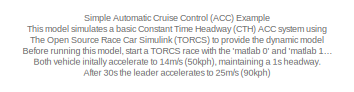
[diagram: root canvas - part 1/2, top left region]
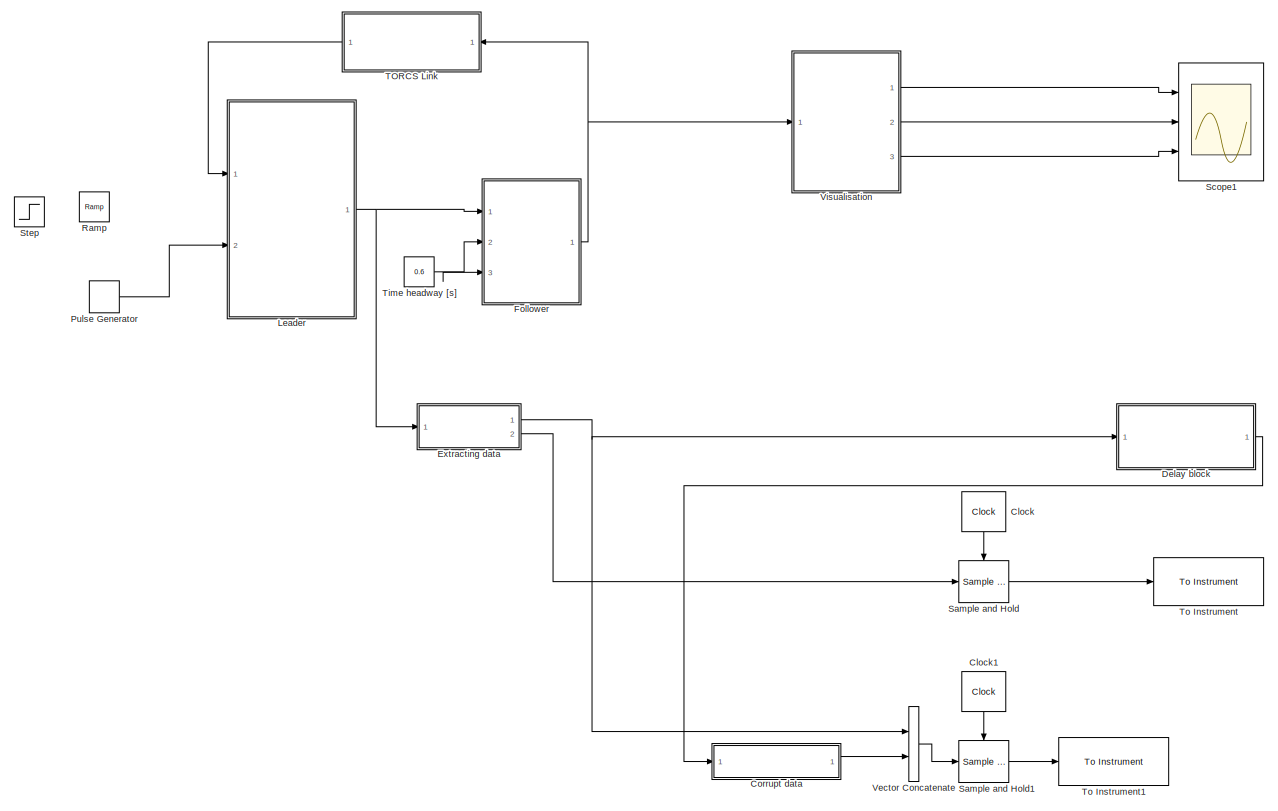
[diagram: root canvas - part 2/2, most of the canvas]
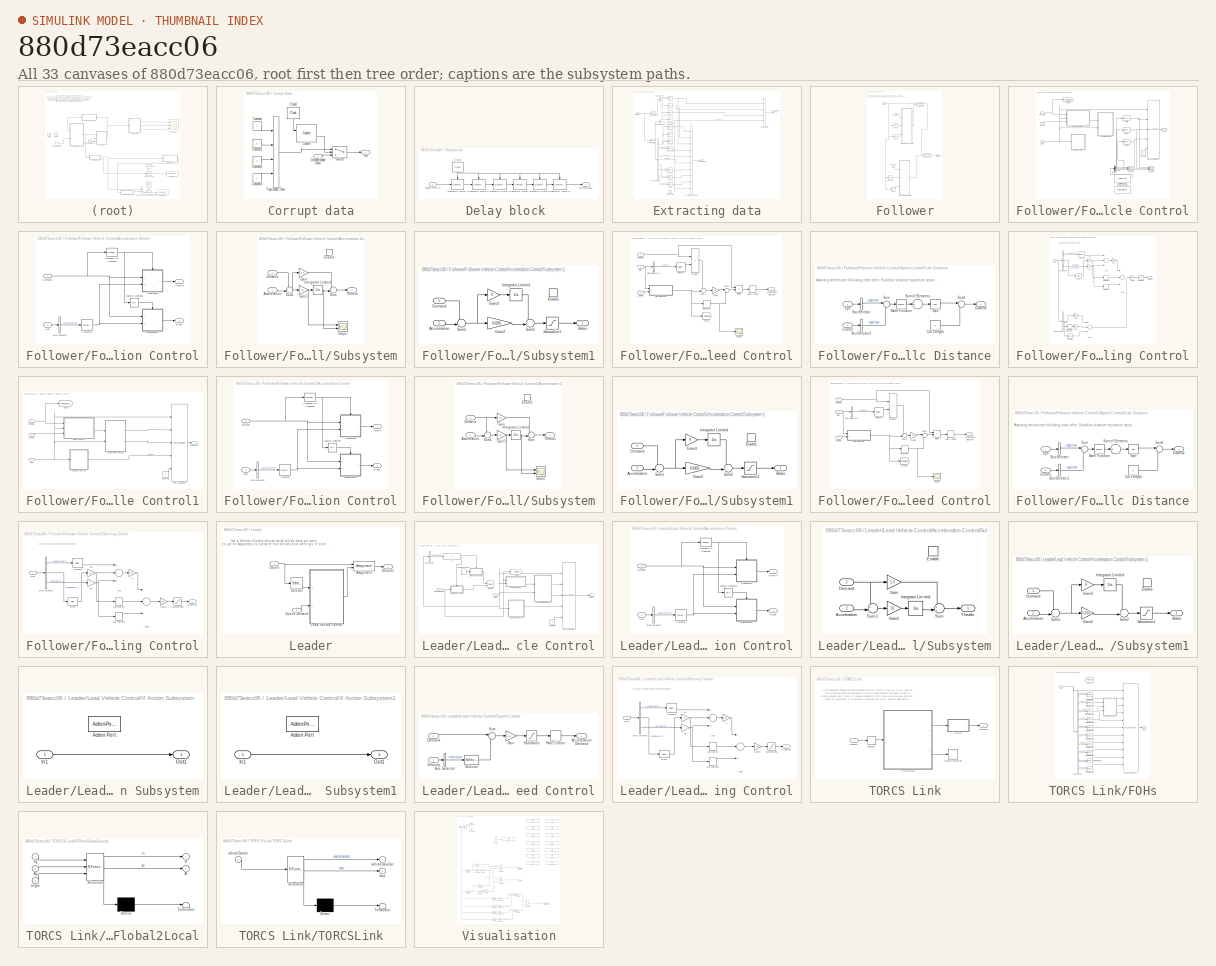
[diagram: thumbnail index - all 33 canvases of the model, root first then tree order]
MODEL slx_880d73eacc06
KIND model
CONFIG AbsTol = auto
CONFIG FixedStep = 0.02
CONFIG MaxStep = auto
CONFIG MinStep = auto
CONFIG RelTol = 1e-3
CONFIG SampleTimeConstraint = Unconstrained
CONFIG Solver = ode3
CONFIG SolverMode = Auto
CONFIG SolverName = ode3
CONFIG StartTime = 0.0
CONFIG StopTime = 1500
BLOCK [Reference] Clock  REF=simulink_extras/Flip Flops/Clock
  Ports = [0, 1]
  SourceBlock = simulink_extras/Flip Flops/Clock
  SourceType = Digital clock
  period = 0.04
BLOCK [Reference] Clock1  REF=simulink_extras/Flip Flops/Clock
  Ports = [0, 1]
  SourceBlock = simulink_extras/Flip Flops/Clock
  SourceType = Digital clock
  period = 0.04
BLOCK [SubSystem] Corrupt data
  Ports = [1, 1]
  RequestExecContextInheritance = off
BLOCK [Reference] Corrupt data/Clock2  REF=simulink_extras/Flip Flops/Clock
  Ports = [0, 1]
  SourceBlock = simulink_extras/Flip Flops/Clock
  SourceType = Digital clock
  period = 0.04
BLOCK [Constant] Corrupt data/Constant
  Value = 2
BLOCK [Constant] Corrupt data/Constant1
  Value = 2
BLOCK [Constant] Corrupt data/Constant2
  Value = 2
BLOCK [Constant] Corrupt data/Constant3
  Value = 2
BLOCK [Reference] Corrupt data/Counter  REF=dspswit3/Counter
  CntDtype = double
  CountEvent = Rising edge
  CounterSize = User defined
  Direction = Up
  HitDtype = Logical
  HitValue = 0
  InitialCount = 0
  MaxCount = 255
  Output = Count and Hit
  Ports = [2, 2]
  ResetInput = on
  SamplesPerFrame = 1
  SourceBlock = dspswit3/Counter
  SourceType = Counter
  Ts = 1
BLOCK [Inport] Corrupt data/Delayed Leader Data
  IconDisplay = Port number
BLOCK [Concatenate] Corrupt data/Faux Leader Data 
  NumInputs = 4
  Ports = [4, 1]
BLOCK [Outport] Corrupt data/Out
  IconDisplay = Port number
BLOCK [Switch] Corrupt data/Switch
  Criteria = u2 ~= 0
  InputSameDT = off
  SaturateOnIntegerOverflow = off
BLOCK [SubSystem] Delay block 
  Ports = [1, 1]
  RequestExecContextInheritance = off
BLOCK [Reference] Delay block /Clock1  REF=simulink_extras/Flip Flops/Clock
  Ports = [0, 1]
  SourceBlock = simulink_extras/Flip Flops/Clock
  SourceType = Digital clock
  period = 0.04
BLOCK [Outport] Delay block /Delayed data
  IconDisplay = Port number
BLOCK [Inport] Delay block /Leader Data in
  IconDisplay = Port number
BLOCK [Reference] Delay block /Sample & Delay 1  REF=dspsigops/Sample
and Hold
  Ports = [1, 1, 0, 1]
  SourceBlock = dspsigops/Sample\nand Hold
  SourceType = Sample and Hold
  initCond = 0
  latchinput = off
  trig = Rising edge
BLOCK [Reference] Delay block /Sample & Delay 2  REF=dspsigops/Sample
and Hold
  Ports = [1, 1, 0, 1]
  SourceBlock = dspsigops/Sample\nand Hold
  SourceType = Sample and Hold
  initCond = 0
  latchinput = on
  trig = Rising edge
BLOCK [Reference] Delay block /Sample & Delay 3  REF=dspsigops/Sample
and Hold
  Ports = [1, 1, 0, 1]
  SourceBlock = dspsigops/Sample\nand Hold
  SourceType = Sample and Hold
  initCond = 0
  latchinput = on
  trig = Rising edge
BLOCK [Reference] Delay block /Sample & Delay 4  REF=dspsigops/Sample
and Hold
  Ports = [1, 1, 0, 1]
  SourceBlock = dspsigops/Sample\nand Hold
  SourceType = Sample and Hold
  initCond = 0
  latchinput = on
  trig = Rising edge
BLOCK [Reference] Delay block /Sample & Delay 5  REF=dspsigops/Sample
and Hold
  Ports = [1, 1, 0, 1]
  SourceBlock = dspsigops/Sample\nand Hold
  SourceType = Sample and Hold
  initCond = 0
  latchinput = on
  trig = Rising edge
BLOCK [Reference] Delay block /Sample & Delay 6  REF=dspsigops/Sample
and Hold
  Ports = [1, 1, 0, 1]
  SourceBlock = dspsigops/Sample\nand Hold
  SourceType = Sample and Hold
  initCond = 0
  latchinput = on
  trig = Rising edge
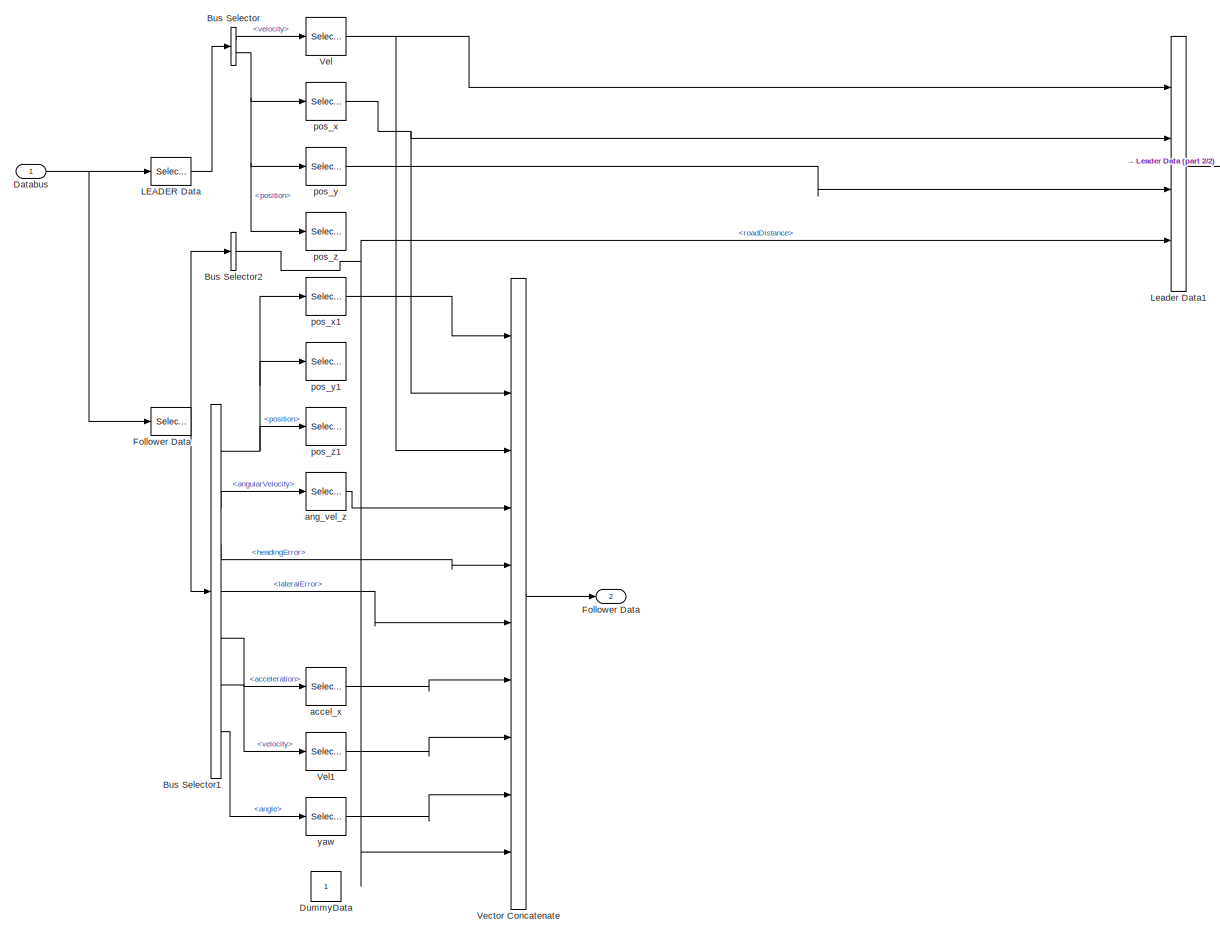
[diagram: Extracting data - part 1/2, most of the canvas]
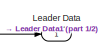
[diagram: Extracting data - part 2/2, top right region]
BLOCK [SubSystem] Extracting data
  Ports = [1, 2]
  RequestExecContextInheritance = off
BLOCK [BusSelector] Extracting data/Bus Selector
  OutputSignals = data.velocity,data.position
  Ports = [1, 2]
BLOCK [BusSelector] Extracting data/Bus Selector1
  OutputSignals = data.position,data.angularVelocity,data.headingError,data.lateralError,data.acceleration,data.velocity,data.angle
  Ports = [1, 7]
BLOCK [BusSelector] Extracting data/Bus Selector2
  OutputSignals = data.roadDistance
  Ports = [1, 1]
BLOCK [Inport] Extracting data/Databus
  IconDisplay = Port number
BLOCK [Constant] Extracting data/DummyData
BLOCK [Outport] Extracting data/Follower Data
  IconDisplay = Port number
  Port = 2
BLOCK [Selector] Extracting data/LEADER Data
  InputPortWidth = 10
  Ports = [1, 1]
BLOCK [Outport] Extracting data/Leader Data
  IconDisplay = Port number
BLOCK [Concatenate] Extracting data/Leader Data1
  NumInputs = 4
  Ports = [4, 1]
BLOCK [Concatenate] Extracting data/Vector Concatenate
  NumInputs = 10
  Ports = [10, 1]
BLOCK [Selector] Extracting data/Vel
  InputPortWidth = 3
  Ports = [1, 1]
BLOCK [Selector] Extracting data/Vel1
  InputPortWidth = 3
  Ports = [1, 1]
BLOCK [Selector] Extracting data/accel_x
  InputPortWidth = 3
  Ports = [1, 1]
BLOCK [Selector] Extracting data/ang_vel_z
  Indices = 3
  InputPortWidth = 3
  Ports = [1, 1]
BLOCK [Selector] Extracting data/pos_x
  InputPortWidth = 3
  Ports = [1, 1]
BLOCK [Selector] Extracting data/pos_x1
  InputPortWidth = 3
  Ports = [1, 1]
BLOCK [Selector] Extracting data/pos_y
  Indices = 2
  InputPortWidth = 3
  Ports = [1, 1]
BLOCK [Selector] Extracting data/pos_y1
  Indices = 2
  InputPortWidth = 3
  Ports = [1, 1]
BLOCK [Selector] Extracting data/pos_z
  Commented = on
  Indices = 3
  InputPortWidth = 3
  Ports = [1, 1]
BLOCK [Selector] Extracting data/pos_z1
  Indices = 3
  InputPortWidth = 3
  Ports = [1, 1]
BLOCK [Selector] Extracting data/yaw
  Indices = 3
  InputPortWidth = 3
  Ports = [1, 1]
BLOCK [SubSystem] Follower
  CopyFcn = veh = str2num(get_param(gcb, 'vehicle'));\nveh = veh + 1;\nset_param(gcb,'vehicle',num2str(veh));
  Ports = [3, 1]
  RequestExecContextInheritance = off
BLOCK [Assignment] Follower/Assignment
  DiagnosticForDimensions = Warning
  Indices = 2
  Ports = [2, 1]
BLOCK [Assignment] Follower/Assignment1
  DiagnosticForDimensions = Warning
  Indices = 3
  Ports = [2, 1]
BLOCK [Inport] Follower/DataIn
  IconDisplay = Port number
BLOCK [Outport] Follower/DataOut
  IconDisplay = Port number
BLOCK [Selector] Follower/Ego
  Indices = 2
  InputPortWidth = 10
  Ports = [1, 1]
BLOCK [Selector] Follower/Ego2
  Indices = 3
  InputPortWidth = 10
  Ports = [1, 1]
BLOCK [SubSystem] Follower/Follower Vehicle Control
  Ports = [3, 1]
  RequestExecContextInheritance = off
BLOCK [SubSystem] Follower/Follower Vehicle Control/Acceleration Control
  Ports = [2, 2]
  RequestExecContextInheritance = off
BLOCK [Outport] Follower/Follower Vehicle Control/Acceleration Control/Brake
  IconDisplay = Port number
  Port = 2
BLOCK [BusSelector] Follower/Follower Vehicle Control/Acceleration Control/Bus Selector
  OutputSignals = data.acceleration
  Ports = [1, 1]
BLOCK [Reference] Follower/Follower Vehicle Control/Acceleration Control/Compare To Constant  REF=simulink/Logic and Bit
Operations/Compare
To Constant
  OutDataTypeStr = boolean
  Ports = [1, 1]
  SourceBlock = simulink/Logic and Bit\nOperations/Compare\nTo Constant
  SourceType = Compare To Constant
  ZeroCross = on
  const = -0.1
  relop = >=
BLOCK [Inport] Follower/Follower Vehicle Control/Acceleration Control/Demand
  IconDisplay = Port number
BLOCK [Inport] Follower/Follower Vehicle Control/Acceleration Control/Ego
  IconDisplay = Port number
  Port = 2
BLOCK [Logic] Follower/Follower Vehicle Control/Acceleration Control/Logical Operator
  AllPortsSameDT = off
  Operator = NOT
  OutDataTypeStr = boolean
  Ports = [1, 1]
BLOCK [Selector] Follower/Follower Vehicle Control/Acceleration Control/Selector
  InputPortWidth = 3
  Ports = [1, 1]
BLOCK [SubSystem] Follower/Follower Vehicle Control/Acceleration Control/Subsystem
  Ports = [2, 1, 1]
  RequestExecContextInheritance = off
BLOCK [Inport] Follower/Follower Vehicle Control/Acceleration Control/Subsystem/Acceleration
  IconDisplay = Port number
  Port = 2
BLOCK [Inport] Follower/Follower Vehicle Control/Acceleration Control/Subsystem/Demand
  IconDisplay = Port number
BLOCK [EnablePort] Follower/Follower Vehicle Control/Acceleration Control/Subsystem/Enable
  Ports = []
  StatesWhenEnabling = reset
BLOCK [Gain] Follower/Follower Vehicle Control/Acceleration Control/Subsystem/Gain
  Gain = 1.5
  OutDataTypeStr = Inherit: Inherit via internal rule
  ParamDataTypeStr = Inherit: Inherit via internal rule
  SaturateOnIntegerOverflow = off
BLOCK [Gain] Follower/Follower Vehicle Control/Acceleration Control/Subsystem/Gain1
  Gain = 10
  OutDataTypeStr = Inherit: Inherit via internal rule
  ParamDataTypeStr = Inherit: Inherit via internal rule
  SaturateOnIntegerOverflow = off
BLOCK [Integrator] Follower/Follower Vehicle Control/Acceleration Control/Subsystem/Integrator Limited
  LimitOutput = on
  LowerSaturationLimit = -1
  Ports = [1, 1]
  UpperSaturationLimit = 1
BLOCK [Scope] Follower/Follower Vehicle Control/Acceleration Control/Subsystem/Scope
  DataFormat = StructureWithTime
  Floating = off
  LimitDataPoints = off
  NumInputPorts = 2
  Ports = [2]
  SaveName = ScopeData5
  ShowLegends = on
  YMax = 327.17922~5
  YMin = -36.35325~-5
BLOCK [Sum] Follower/Follower Vehicle Control/Acceleration Control/Subsystem/Sum
  IconShape = round
  InputSameDT = off
  Inputs = ++|
  OutDataTypeStr = Inherit: Inherit via internal rule
  Ports = [2, 1]
  SaturateOnIntegerOverflow = off
BLOCK [Sum] Follower/Follower Vehicle Control/Acceleration Control/Subsystem/Sum1
  IconShape = round
  InputSameDT = off
  Inputs = +-|
  OutDataTypeStr = Inherit: Inherit via internal rule
  Ports = [2, 1]
  SaturateOnIntegerOverflow = off
BLOCK [Outport] Follower/Follower Vehicle Control/Acceleration Control/Subsystem/Throttle
  IconDisplay = Port number
  InitialOutput = 0
  OutputWhenDisabled = reset
BLOCK [SubSystem] Follower/Follower Vehicle Control/Acceleration Control/Subsystem1
  Ports = [2, 1, 1]
  RequestExecContextInheritance = off
BLOCK [Inport] Follower/Follower Vehicle Control/Acceleration Control/Subsystem1/Acceleration
  IconDisplay = Port number
  Port = 2
BLOCK [Outport] Follower/Follower Vehicle Control/Acceleration Control/Subsystem1/Brake
  IconDisplay = Port number
  InitialOutput = 0
  OutputWhenDisabled = reset
BLOCK [Inport] Follower/Follower Vehicle Control/Acceleration Control/Subsystem1/Demand
  IconDisplay = Port number
BLOCK [EnablePort] Follower/Follower Vehicle Control/Acceleration Control/Subsystem1/Enable
  Ports = []
  StatesWhenEnabling = reset
BLOCK [Gain] Follower/Follower Vehicle Control/Acceleration Control/Subsystem1/Gain2
  Gain = 0.005
  OutDataTypeStr = Inherit: Inherit via internal rule
  ParamDataTypeStr = Inherit: Inherit via internal rule
  SaturateOnIntegerOverflow = off
BLOCK [Gain] Follower/Follower Vehicle Control/Acceleration Control/Subsystem1/Gain3
  OutDataTypeStr = Inherit: Inherit via internal rule
  ParamDataTypeStr = Inherit: Inherit via internal rule
  SaturateOnIntegerOverflow = off
BLOCK [Integrator] Follower/Follower Vehicle Control/Acceleration Control/Subsystem1/Integrator Limited
  LimitOutput = on
  LowerSaturationLimit = -1
  Ports = [1, 1]
  UpperSaturationLimit = 1
BLOCK [Saturate] Follower/Follower Vehicle Control/Acceleration Control/Subsystem1/Saturation1
  InputPortMap = u0
  LowerLimit = 0
  Ports = [1, 1]
  UpperLimit = 1
BLOCK [Sum] Follower/Follower Vehicle Control/Acceleration Control/Subsystem1/Sum1
  IconShape = round
  InputSameDT = off
  Inputs = -+|
  OutDataTypeStr = Inherit: Inherit via internal rule
  Ports = [2, 1]
  SaturateOnIntegerOverflow = off
BLOCK [Sum] Follower/Follower Vehicle Control/Acceleration Control/Subsystem1/Sum2
  IconShape = round
  InputSameDT = off
  Inputs = ++|
  OutDataTypeStr = Inherit: Inherit via internal rule
  Ports = [2, 1]
  SaturateOnIntegerOverflow = off
BLOCK [Outport] Follower/Follower Vehicle Control/Acceleration Control/Throttle
  IconDisplay = Port number
BLOCK [DataTypeConversion] Follower/Follower Vehicle Control/Brake
  OutDataTypeStr = double
  RndMeth = Floor
  SaturateOnIntegerOverflow = off
BLOCK [BusAssignment] Follower/Follower Vehicle Control/Bus Assignment
  AssignedSignals = control.throttle,control.brake,control.steering,control.gear
  Ports = [5, 1]
BLOCK [Constant] Follower/Follower Vehicle Control/Constant
  OutDataTypeStr = int32
  Value = 3
BLOCK [Demux] Follower/Follower Vehicle Control/Demux
  DisplayOption = bar
  Outputs = 3
  Ports = [1, 3]
BLOCK [Outport] Follower/Follower Vehicle Control/ECU 1
  IconDisplay = Port number
BLOCK [Inport] Follower/Follower Vehicle Control/Ego
  IconDisplay = Port number
  Port = 3
BLOCK [Goto] Follower/Follower Vehicle Control/Goto
  GotoTag = headway
  TagVisibility = global
BLOCK [Inport] Follower/Follower Vehicle Control/Headway
  IconDisplay = Port number
BLOCK [Inport] Follower/Follower Vehicle Control/Leader
  IconDisplay = Port number
  Port = 2
BLOCK [Scope] Follower/Follower Vehicle Control/Scope1
  DataFormat = StructureWithTime
  Floating = off
  LimitDataPoints = off
  NumInputPorts = 3
  Ports = [3]
  SaveName = ScopeData1
  ShowLegends = on
  YMax = 0.6~5~5
  YMin = -0.6~-5~-5
BLOCK [Scope] Follower/Follower Vehicle Control/Scope3
  DataFormat = StructureWithTime
  Floating = off
  LimitDataPoints = off
  NumInputPorts = 3
  Ports = [3]
  SaveName = ScopeData1
  YMax = 29.37274~5~5
  YMin = -3.81919~-5~-5
BLOCK [Reference] Follower/Follower Vehicle Control/Serial Configuration  REF=instrumentlib/Serial Configuration
  BaudRate = 115200
  ByteOrder = BigEndian
  ComPort = COM2
  ComPortMenu = <Please select a port...>
  DataBits = 8
  FlowControl = none
  ObjConstructor = serial('COM2');
  Parity = none
  Ports = []
  Priority = -200000
  SourceBlock = instrumentlib/Serial Configuration
  SourceType = Serial Configuration
  StopBits = 1
  Timeout = 10
BLOCK [Reference] Follower/Follower Vehicle Control/Serial Receive  REF=instrumentlib/Serial Receive
  ActionDataUnavailable = Output last received value
  ComPort = COM2
  ComPortMenu = <Please select a port...>
  CustomValue = 0
  DataSize = [1  3]
  DataType = single
  EnableBlockingMode = off
  ObjConstructor = serial('COM2');
  Ports = [0, 2]
  SampleTime = 0.02
  SourceBlock = instrumentlib/Serial Receive
  SourceType = Serial Receive
  Terminator = <none>
BLOCK [SubSystem] Follower/Follower Vehicle Control/Speed Control
  Ports = [3, 1]
  RequestExecContextInheritance = off
BLOCK [Outport] Follower/Follower Vehicle Control/Speed Control/Acceleration Demand
  IconDisplay = Port number
BLOCK [BusSelector] Follower/Follower Vehicle Control/Speed Control/Bus Selector3
  OutputSignals = data.velocity
  Ports = [1, 1]
BLOCK [SubSystem] Follower/Follower Vehicle Control/Speed Control/Calc Distance
  Ports = [2, 1]
  RequestExecContextInheritance = off
BLOCK [BusSelector] Follower/Follower Vehicle Control/Speed Control/Calc Distance/Bus Selector
  OutputSignals = data.position
  Ports = [1, 1]
BLOCK [BusSelector] Follower/Follower Vehicle Control/Speed Control/Calc Distance/Bus Selector1
  OutputSignals = data.position
  Ports = [1, 1]
BLOCK [Constant] Follower/Follower Vehicle Control/Speed Control/Calc Distance/Car Length
  Value = 5
BLOCK [Outport] Follower/Follower Vehicle Control/Speed Control/Calc Distance/Distance
  IconDisplay = Port number
BLOCK [Inport] Follower/Follower Vehicle Control/Speed Control/Calc Distance/Ego
  IconDisplay = Port number
BLOCK [Inport] Follower/Follower Vehicle Control/Speed Control/Calc Distance/Leader
  IconDisplay = Port number
  Port = 2
BLOCK [Math] Follower/Follower Vehicle Control/Speed Control/Calc Distance/Math Function
  Operator = square
  Ports = [1, 1]
BLOCK [Sqrt] Follower/Follower Vehicle Control/Speed Control/Calc Distance/Sqrt
BLOCK [Sum] Follower/Follower Vehicle Control/Speed Control/Calc Distance/Sum
  IconShape = round
  InputSameDT = off
  Inputs = |+-
  OutDataTypeStr = Inherit: Inherit via internal rule
  Ports = [2, 1]
  SaturateOnIntegerOverflow = off
BLOCK [Sum] Follower/Follower Vehicle Control/Speed Control/Calc Distance/Sum of Elements
  InputSameDT = off
  Inputs = +
  OutDataTypeStr = Inherit: Inherit via internal rule
  Ports = [1, 1]
  SaturateOnIntegerOverflow = off
BLOCK [Sum] Follower/Follower Vehicle Control/Speed Control/Calc Distance/Sum1
  IconShape = round
  InputSameDT = off
  Inputs = |-+
  OutDataTypeStr = Inherit: Inherit via internal rule
  Ports = [2, 1]
  SaturateOnIntegerOverflow = off
BLOCK [Derivative] Follower/Follower Vehicle Control/Speed Control/Derivative
BLOCK [Product] Follower/Follower Vehicle Control/Speed Control/Divide
  InputSameDT = off
  Inputs = /*
  OutDataTypeStr = Inherit: Inherit via internal rule
  Ports = [2, 1]
  RndMeth = Floor
  SaturateOnIntegerOverflow = off
BLOCK [Inport] Follower/Follower Vehicle Control/Speed Control/Ego
  IconDisplay = Port number
  Port = 2
BLOCK [Gain] Follower/Follower Vehicle Control/Speed Control/Gain2
  Gain = 0.1
  OutDataTypeStr = Inherit: Inherit via internal rule
  ParamDataTypeStr = Inherit: Inherit via internal rule
  SaturateOnIntegerOverflow = off
BLOCK [Goto] Follower/Follower Vehicle Control/Speed Control/Goto
  GotoTag = spacing
  TagVisibility = global
BLOCK [Inport] Follower/Follower Vehicle Control/Speed Control/Headway
  IconDisplay = Port number
BLOCK [Inport] Follower/Follower Vehicle Control/Speed Control/Leader
  IconDisplay = Port number
  Port = 3
BLOCK [Product] Follower/Follower Vehicle Control/Speed Control/Product
  InputSameDT = off
  OutDataTypeStr = Inherit: Inherit via internal rule
  Ports = [2, 1]
  RndMeth = Floor
  SaturateOnIntegerOverflow = off
BLOCK [Scope] Follower/Follower Vehicle Control/Speed Control/Scope
  DataFormat = StructureWithTime
  Floating = off
  LimitDataPoints = off
  NumInputPorts = 1
  Ports = [1]
  SaveName = ScopeData1
  YMax = 58.13725
  YMin = -52.83291
BLOCK [Selector] Follower/Follower Vehicle Control/Speed Control/Selector
  InputPortWidth = 3
  Ports = [1, 1]
BLOCK [Sum] Follower/Follower Vehicle Control/Speed Control/Sum1
  IconShape = round
  InputSameDT = off
  Inputs = |++
  OutDataTypeStr = Inherit: Inherit via internal rule
  Ports = [2, 1]
  SaturateOnIntegerOverflow = off
BLOCK [Sum] Follower/Follower Vehicle Control/Speed Control/Sum2
  IconShape = round
  InputSameDT = off
  Inputs = -+|
  OutDataTypeStr = Inherit: Inherit via internal rule
  Ports = [2, 1]
  SaturateOnIntegerOverflow = off
BLOCK [UnaryMinus] Follower/Follower Vehicle Control/Speed Control/Unary Minus
BLOCK [DataTypeConversion] Follower/Follower Vehicle Control/Steering
  OutDataTypeStr = double
  RndMeth = Floor
  SaturateOnIntegerOverflow = off
BLOCK [SubSystem] Follower/Follower Vehicle Control/Steering Control
  Ports = [1, 1]
  RequestExecContextInheritance = off
BLOCK [Sum] Follower/Follower Vehicle Control/Steering Control/Add
  Commented = on
  InputSameDT = off
  Inputs = +++
  OutDataTypeStr = Inherit: Inherit via internal rule
  Ports = [3, 1]
  SaturateOnIntegerOverflow = off
BLOCK [Sum] Follower/Follower Vehicle Control/Steering Control/Add1
  Commented = on
  InputSameDT = off
  Inputs = ---
  OutDataTypeStr = Inherit: Inherit via internal rule
  Ports = [3, 1]
  SaturateOnIntegerOverflow = off
BLOCK [Sum] Follower/Follower Vehicle Control/Steering Control/Add2
  InputSameDT = off
  Inputs = +++
  OutDataTypeStr = Inherit: Inherit via internal rule
  Ports = [3, 1]
  SaturateOnIntegerOverflow = off
BLOCK [Bias] Follower/Follower Vehicle Control/Steering Control/Bias
  Commented = on
  SaturateOnIntegerOverflow = off
BLOCK [BusSelector] Follower/Follower Vehicle Control/Steering Control/Bus Selector
  Commented = on
  OutputSignals = data.angularVelocity,data.headingError,data.lateralError
  Ports = [1, 3]
BLOCK [BusSelector] Follower/Follower Vehicle Control/Steering Control/Bus Selector1
  OutputSignals = data.lateralError
  Ports = [1, 1]
BLOCK [Derivative] Follower/Follower Vehicle Control/Steering Control/Derivative
  Commented = on
BLOCK [Derivative] Follower/Follower Vehicle Control/Steering Control/Derivative1
  Commented = on
BLOCK [Derivative] Follower/Follower Vehicle Control/Steering Control/Derivative2
BLOCK [Inport] Follower/Follower Vehicle Control/Steering Control/Ego
  IconDisplay = Port number
BLOCK [Gain] Follower/Follower Vehicle Control/Steering Control/Gain3
  Gain = -0.5
  OutDataTypeStr = Inherit: Inherit via internal rule
  ParamDataTypeStr = Inherit: Inherit via internal rule
  SaturateOnIntegerOverflow = off
BLOCK [Integrator] Follower/Follower Vehicle Control/Steering Control/Integrator
  Ports = [1, 1]
BLOCK [Gain] Follower/Follower Vehicle Control/Steering Control/K
  Commented = on
  Gain = 0.5
  OutDataTypeStr = Inherit: Inherit via internal rule
  ParamDataTypeStr = Inherit: Inherit via internal rule
  SaturateOnIntegerOverflow = off
BLOCK [Saturate] Follower/Follower Vehicle Control/Steering Control/Saturation5
  InputPortMap = u0
  Ports = [1, 1]
BLOCK [Selector] Follower/Follower Vehicle Control/Steering Control/Selector
  Commented = on
  Indices = 3
  InputPortWidth = 3
  Ports = [1, 1]
BLOCK [Outport] Follower/Follower Vehicle Control/Steering Control/Steering
  IconDisplay = Port number
BLOCK [Gain] Follower/Follower Vehicle Control/Steering Control/kd
  Commented = on
  OutDataTypeStr = Inherit: Inherit via internal rule
  ParamDataTypeStr = Inherit: Inherit via internal rule
  SaturateOnIntegerOverflow = off
BLOCK [Gain] Follower/Follower Vehicle Control/Steering Control/kd1
  OutDataTypeStr = Inherit: Inherit via internal rule
  ParamDataTypeStr = Inherit: Inherit via internal rule
  SaturateOnIntegerOverflow = off
BLOCK [Gain] Follower/Follower Vehicle Control/Steering Control/kp
  Commented = on
  Gain = 0.1
  OutDataTypeStr = Inherit: Inherit via internal rule
  ParamDataTypeStr = Inherit: Inherit via internal rule
  SaturateOnIntegerOverflow = off
BLOCK [Gain] Follower/Follower Vehicle Control/Steering Control/kp1
  Gain = 5
  OutDataTypeStr = Inherit: Inherit via internal rule
  ParamDataTypeStr = Inherit: Inherit via internal rule
  SaturateOnIntegerOverflow = off
BLOCK [DataTypeConversion] Follower/Follower Vehicle Control/Throttle
  OutDataTypeStr = double
  RndMeth = Floor
  SaturateOnIntegerOverflow = off
BLOCK [SubSystem] Follower/Follower Vehicle Control1
  Ports = [3, 1]
  RequestExecContextInheritance = off
BLOCK [SubSystem] Follower/Follower Vehicle Control1/Acceleration Control
  Ports = [2, 2]
  RequestExecContextInheritance = off
BLOCK [Outport] Follower/Follower Vehicle Control1/Acceleration Control/Brake
  IconDisplay = Port number
  Port = 2
BLOCK [BusSelector] Follower/Follower Vehicle Control1/Acceleration Control/Bus Selector
  OutputSignals = data.acceleration
  Ports = [1, 1]
BLOCK [Reference] Follower/Follower Vehicle Control1/Acceleration Control/Compare To Constant  REF=simulink/Logic and Bit
Operations/Compare
To Constant
  OutDataTypeStr = boolean
  Ports = [1, 1]
  SourceBlock = simulink/Logic and Bit\nOperations/Compare\nTo Constant
  SourceType = Compare To Constant
  ZeroCross = on
  const = -0.1
  relop = >=
BLOCK [Inport] Follower/Follower Vehicle Control1/Acceleration Control/Demand
  IconDisplay = Port number
BLOCK [Inport] Follower/Follower Vehicle Control1/Acceleration Control/Ego
  IconDisplay = Port number
  Port = 2
BLOCK [Logic] Follower/Follower Vehicle Control1/Acceleration Control/Logical Operator
  AllPortsSameDT = off
  Operator = NOT
  OutDataTypeStr = boolean
  Ports = [1, 1]
BLOCK [Selector] Follower/Follower Vehicle Control1/Acceleration Control/Selector
  InputPortWidth = 3
  Ports = [1, 1]
BLOCK [SubSystem] Follower/Follower Vehicle Control1/Acceleration Control/Subsystem
  Ports = [2, 1, 1]
  RequestExecContextInheritance = off
BLOCK [Inport] Follower/Follower Vehicle Control1/Acceleration Control/Subsystem/Acceleration
  IconDisplay = Port number
  Port = 2
BLOCK [Inport] Follower/Follower Vehicle Control1/Acceleration Control/Subsystem/Demand
  IconDisplay = Port number
BLOCK [EnablePort] Follower/Follower Vehicle Control1/Acceleration Control/Subsystem/Enable
  Ports = []
  StatesWhenEnabling = reset
BLOCK [Gain] Follower/Follower Vehicle Control1/Acceleration Control/Subsystem/Gain
  Gain = 1.5
  OutDataTypeStr = Inherit: Inherit via internal rule
  ParamDataTypeStr = Inherit: Inherit via internal rule
  SaturateOnIntegerOverflow = off
BLOCK [Gain] Follower/Follower Vehicle Control1/Acceleration Control/Subsystem/Gain1
  Gain = 10
  OutDataTypeStr = Inherit: Inherit via internal rule
  ParamDataTypeStr = Inherit: Inherit via internal rule
  SaturateOnIntegerOverflow = off
BLOCK [Integrator] Follower/Follower Vehicle Control1/Acceleration Control/Subsystem/Integrator Limited
  LimitOutput = on
  LowerSaturationLimit = -1
  Ports = [1, 1]
  UpperSaturationLimit = 1
BLOCK [Scope] Follower/Follower Vehicle Control1/Acceleration Control/Subsystem/Scope
  DataFormat = StructureWithTime
  Floating = off
  LimitDataPoints = off
  NumInputPorts = 2
  Ports = [2]
  SaveName = ScopeData5
  ShowLegends = on
  YMax = 327.17922~5
  YMin = -36.35325~-5
BLOCK [Sum] Follower/Follower Vehicle Control1/Acceleration Control/Subsystem/Sum
  IconShape = round
  InputSameDT = off
  Inputs = ++|
  OutDataTypeStr = Inherit: Inherit via internal rule
  Ports = [2, 1]
  SaturateOnIntegerOverflow = off
BLOCK [Sum] Follower/Follower Vehicle Control1/Acceleration Control/Subsystem/Sum1
  IconShape = round
  InputSameDT = off
  Inputs = +-|
  OutDataTypeStr = Inherit: Inherit via internal rule
  Ports = [2, 1]
  SaturateOnIntegerOverflow = off
BLOCK [Outport] Follower/Follower Vehicle Control1/Acceleration Control/Subsystem/Throttle
  IconDisplay = Port number
  InitialOutput = 0
  OutputWhenDisabled = reset
BLOCK [SubSystem] Follower/Follower Vehicle Control1/Acceleration Control/Subsystem1
  Ports = [2, 1, 1]
  RequestExecContextInheritance = off
BLOCK [Inport] Follower/Follower Vehicle Control1/Acceleration Control/Subsystem1/Acceleration
  IconDisplay = Port number
  Port = 2
BLOCK [Outport] Follower/Follower Vehicle Control1/Acceleration Control/Subsystem1/Brake
  IconDisplay = Port number
  InitialOutput = 0
  OutputWhenDisabled = reset
BLOCK [Inport] Follower/Follower Vehicle Control1/Acceleration Control/Subsystem1/Demand
  IconDisplay = Port number
BLOCK [EnablePort] Follower/Follower Vehicle Control1/Acceleration Control/Subsystem1/Enable
  Ports = []
  StatesWhenEnabling = reset
BLOCK [Gain] Follower/Follower Vehicle Control1/Acceleration Control/Subsystem1/Gain2
  Gain = 0.005
  OutDataTypeStr = Inherit: Inherit via internal rule
  ParamDataTypeStr = Inherit: Inherit via internal rule
  SaturateOnIntegerOverflow = off
BLOCK [Gain] Follower/Follower Vehicle Control1/Acceleration Control/Subsystem1/Gain3
  OutDataTypeStr = Inherit: Inherit via internal rule
  ParamDataTypeStr = Inherit: Inherit via internal rule
  SaturateOnIntegerOverflow = off
BLOCK [Integrator] Follower/Follower Vehicle Control1/Acceleration Control/Subsystem1/Integrator Limited
  LimitOutput = on
  LowerSaturationLimit = -1
  Ports = [1, 1]
  UpperSaturationLimit = 1
BLOCK [Saturate] Follower/Follower Vehicle Control1/Acceleration Control/Subsystem1/Saturation1
  InputPortMap = u0
  LowerLimit = 0
  Ports = [1, 1]
  UpperLimit = 1
BLOCK [Sum] Follower/Follower Vehicle Control1/Acceleration Control/Subsystem1/Sum1
  IconShape = round
  InputSameDT = off
  Inputs = -+|
  OutDataTypeStr = Inherit: Inherit via internal rule
  Ports = [2, 1]
  SaturateOnIntegerOverflow = off
BLOCK [Sum] Follower/Follower Vehicle Control1/Acceleration Control/Subsystem1/Sum2
  IconShape = round
  InputSameDT = off
  Inputs = ++|
  OutDataTypeStr = Inherit: Inherit via internal rule
  Ports = [2, 1]
  SaturateOnIntegerOverflow = off
BLOCK [Outport] Follower/Follower Vehicle Control1/Acceleration Control/Throttle
  IconDisplay = Port number
BLOCK [BusAssignment] Follower/Follower Vehicle Control1/Bus Assignment
  AssignedSignals = control.throttle,control.brake,control.steering,control.gear
  Ports = [5, 1]
BLOCK [Constant] Follower/Follower Vehicle Control1/Constant
  OutDataTypeStr = int32
  Value = 3
BLOCK [Outport] Follower/Follower Vehicle Control1/Data Out
  IconDisplay = Port number
BLOCK [Inport] Follower/Follower Vehicle Control1/Ego
  IconDisplay = Port number
  Port = 3
BLOCK [Goto] Follower/Follower Vehicle Control1/Goto1
  GotoTag = headway1
  TagVisibility = global
BLOCK [Inport] Follower/Follower Vehicle Control1/Headway
  IconDisplay = Port number
BLOCK [Inport] Follower/Follower Vehicle Control1/Leader
  IconDisplay = Port number
  Port = 2
BLOCK [SubSystem] Follower/Follower Vehicle Control1/Speed Control
  Ports = [3, 1]
  RequestExecContextInheritance = off
BLOCK [Outport] Follower/Follower Vehicle Control1/Speed Control/Acceleration Demand
  IconDisplay = Port number
BLOCK [BusSelector] Follower/Follower Vehicle Control1/Speed Control/Bus Selector3
  OutputSignals = data.velocity
  Ports = [1, 1]
BLOCK [SubSystem] Follower/Follower Vehicle Control1/Speed Control/Calc Distance
  Ports = [2, 1]
  RequestExecContextInheritance = off
BLOCK [BusSelector] Follower/Follower Vehicle Control1/Speed Control/Calc Distance/Bus Selector
  OutputSignals = data.position
  Ports = [1, 1]
BLOCK [BusSelector] Follower/Follower Vehicle Control1/Speed Control/Calc Distance/Bus Selector1
  OutputSignals = data.position
  Ports = [1, 1]
BLOCK [Constant] Follower/Follower Vehicle Control1/Speed Control/Calc Distance/Car Length
  Value = 5
BLOCK [Outport] Follower/Follower Vehicle Control1/Speed Control/Calc Distance/Distance
  IconDisplay = Port number
BLOCK [Inport] Follower/Follower Vehicle Control1/Speed Control/Calc Distance/Ego
  IconDisplay = Port number
BLOCK [Inport] Follower/Follower Vehicle Control1/Speed Control/Calc Distance/Leader
  IconDisplay = Port number
  Port = 2
BLOCK [Math] Follower/Follower Vehicle Control1/Speed Control/Calc Distance/Math Function
  Operator = square
  Ports = [1, 1]
BLOCK [Sqrt] Follower/Follower Vehicle Control1/Speed Control/Calc Distance/Sqrt
BLOCK [Sum] Follower/Follower Vehicle Control1/Speed Control/Calc Distance/Sum
  IconShape = round
  InputSameDT = off
  Inputs = |+-
  OutDataTypeStr = Inherit: Inherit via internal rule
  Ports = [2, 1]
  SaturateOnIntegerOverflow = off
BLOCK [Sum] Follower/Follower Vehicle Control1/Speed Control/Calc Distance/Sum of Elements
  InputSameDT = off
  Inputs = +
  OutDataTypeStr = Inherit: Inherit via internal rule
  Ports = [1, 1]
  SaturateOnIntegerOverflow = off
BLOCK [Sum] Follower/Follower Vehicle Control1/Speed Control/Calc Distance/Sum1
  IconShape = round
  InputSameDT = off
  Inputs = |-+
  OutDataTypeStr = Inherit: Inherit via internal rule
  Ports = [2, 1]
  SaturateOnIntegerOverflow = off
BLOCK [Derivative] Follower/Follower Vehicle Control1/Speed Control/Derivative
BLOCK [Product] Follower/Follower Vehicle Control1/Speed Control/Divide
  InputSameDT = off
  Inputs = /*
  OutDataTypeStr = Inherit: Inherit via internal rule
  Ports = [2, 1]
  RndMeth = Floor
  SaturateOnIntegerOverflow = off
BLOCK [Inport] Follower/Follower Vehicle Control1/Speed Control/Ego
  IconDisplay = Port number
  Port = 2
BLOCK [Gain] Follower/Follower Vehicle Control1/Speed Control/Gain2
  Gain = 0.1
  OutDataTypeStr = Inherit: Inherit via internal rule
  ParamDataTypeStr = Inherit: Inherit via internal rule
  SaturateOnIntegerOverflow = off
BLOCK [Goto] Follower/Follower Vehicle Control1/Speed Control/Goto1
  GotoTag = spacing1
  TagVisibility = global
BLOCK [Inport] Follower/Follower Vehicle Control1/Speed Control/Headway
  IconDisplay = Port number
BLOCK [Inport] Follower/Follower Vehicle Control1/Speed Control/Leader
  IconDisplay = Port number
  Port = 3
BLOCK [Product] Follower/Follower Vehicle Control1/Speed Control/Product
  InputSameDT = off
  OutDataTypeStr = Inherit: Inherit via internal rule
  Ports = [2, 1]
  RndMeth = Floor
  SaturateOnIntegerOverflow = off
BLOCK [Scope] Follower/Follower Vehicle Control1/Speed Control/Scope
  DataFormat = StructureWithTime
  Floating = off
  LimitDataPoints = off
  NumInputPorts = 1
  Ports = [1]
  SaveName = ScopeData1
  YMax = 58.13725
  YMin = -52.83291
BLOCK [Selector] Follower/Follower Vehicle Control1/Speed Control/Selector
  InputPortWidth = 3
  Ports = [1, 1]
BLOCK [Sum] Follower/Follower Vehicle Control1/Speed Control/Sum1
  IconShape = round
  InputSameDT = off
  Inputs = |++
  OutDataTypeStr = Inherit: Inherit via internal rule
  Ports = [2, 1]
  SaturateOnIntegerOverflow = off
BLOCK [Sum] Follower/Follower Vehicle Control1/Speed Control/Sum2
  IconShape = round
  InputSameDT = off
  Inputs = ++|
  OutDataTypeStr = Inherit: Inherit via internal rule
  Ports = [2, 1]
  SaturateOnIntegerOverflow = off
BLOCK [UnaryMinus] Follower/Follower Vehicle Control1/Speed Control/Unary Minus
BLOCK [SubSystem] Follower/Follower Vehicle Control1/Steering Control
  Ports = [1, 1]
  RequestExecContextInheritance = off
BLOCK [Sum] Follower/Follower Vehicle Control1/Steering Control/Add
  InputSameDT = off
  Inputs = +++
  OutDataTypeStr = Inherit: Inherit via internal rule
  Ports = [3, 1]
  SaturateOnIntegerOverflow = off
BLOCK [Sum] Follower/Follower Vehicle Control1/Steering Control/Add1
  InputSameDT = off
  Inputs = ---
  OutDataTypeStr = Inherit: Inherit via internal rule
  Ports = [3, 1]
  SaturateOnIntegerOverflow = off
BLOCK [Bias] Follower/Follower Vehicle Control1/Steering Control/Bias
  Bias = -45
  SaturateOnIntegerOverflow = off
BLOCK [BusSelector] Follower/Follower Vehicle Control1/Steering Control/Bus Selector
  OutputSignals = data.angularVelocity,data.headingError,data.lateralError
  Ports = [1, 3]
BLOCK [Derivative] Follower/Follower Vehicle Control1/Steering Control/Derivative
BLOCK [Derivative] Follower/Follower Vehicle Control1/Steering Control/Derivative1
BLOCK [Inport] Follower/Follower Vehicle Control1/Steering Control/Ego
  IconDisplay = Port number
BLOCK [Gain] Follower/Follower Vehicle Control1/Steering Control/Gain3
  Gain = 0.5
  OutDataTypeStr = Inherit: Inherit via internal rule
  ParamDataTypeStr = Inherit: Inherit via internal rule
  SaturateOnIntegerOverflow = off
BLOCK [Gain] Follower/Follower Vehicle Control1/Steering Control/K
  Gain = 0.5
  OutDataTypeStr = Inherit: Inherit via internal rule
  ParamDataTypeStr = Inherit: Inherit via internal rule
  SaturateOnIntegerOverflow = off
BLOCK [Saturate] Follower/Follower Vehicle Control1/Steering Control/Saturation5
  InputPortMap = u0
  Ports = [1, 1]
BLOCK [Selector] Follower/Follower Vehicle Control1/Steering Control/Selector
  Indices = 3
  InputPortWidth = 3
  Ports = [1, 1]
BLOCK [Outport] Follower/Follower Vehicle Control1/Steering Control/Steering
  IconDisplay = Port number
BLOCK [Gain] Follower/Follower Vehicle Control1/Steering Control/kd
  OutDataTypeStr = Inherit: Inherit via internal rule
  ParamDataTypeStr = Inherit: Inherit via internal rule
  SaturateOnIntegerOverflow = off
BLOCK [Gain] Follower/Follower Vehicle Control1/Steering Control/kp
  Gain = 0.1
  OutDataTypeStr = Inherit: Inherit via internal rule
  ParamDataTypeStr = Inherit: Inherit via internal rule
  SaturateOnIntegerOverflow = off
BLOCK [Selector] Follower/Leader
  InputPortWidth = 10
  Ports = [1, 1]
BLOCK [Selector] Follower/Leader1
  InputPortWidth = 10
  Ports = [1, 1]
BLOCK [Inport] Follower/Spacing
  IconDisplay = Port number
  Port = 2
BLOCK [Inport] Follower/Spacing1
  IconDisplay = Port number
  Port = 3
BLOCK [SubSystem] Leader
  Ports = [2, 1]
  RequestExecContextInheritance = off
BLOCK [Assignment] Leader/Assignment
  DiagnosticForDimensions = Warning
  Ports = [2, 1]
BLOCK [Inport] Leader/DataIn
  IconDisplay = Port number
BLOCK [Outport] Leader/DataOut
  IconDisplay = Port number
BLOCK [SubSystem] Leader/Lead Vehicle Control
  Ports = [2, 1]
  RequestExecContextInheritance = off
BLOCK [SubSystem] Leader/Lead Vehicle Control/Acceleration Control
  Ports = [2, 2]
  RequestExecContextInheritance = off
BLOCK [Outport] Leader/Lead Vehicle Control/Acceleration Control/Brake
  IconDisplay = Port number
  Port = 2
BLOCK [BusSelector] Leader/Lead Vehicle Control/Acceleration Control/Bus Selector
  OutputSignals = data.acceleration
  Ports = [1, 1]
BLOCK [Reference] Leader/Lead Vehicle Control/Acceleration Control/Compare To Constant  REF=simulink/Logic and Bit
Operations/Compare
To Constant
  OutDataTypeStr = boolean
  Ports = [1, 1]
  SourceBlock = simulink/Logic and Bit\nOperations/Compare\nTo Constant
  SourceType = Compare To Constant
  ZeroCross = on
  const = -0.1
  relop = >=
BLOCK [Inport] Leader/Lead Vehicle Control/Acceleration Control/Demand
  IconDisplay = Port number
BLOCK [Inport] Leader/Lead Vehicle Control/Acceleration Control/Ego
  IconDisplay = Port number
  Port = 2
BLOCK [Logic] Leader/Lead Vehicle Control/Acceleration Control/Logical Operator
  AllPortsSameDT = off
  Operator = NOT
  OutDataTypeStr = boolean
  Ports = [1, 1]
BLOCK [Selector] Leader/Lead Vehicle Control/Acceleration Control/Selector
  InputPortWidth = 3
  Ports = [1, 1]
BLOCK [SubSystem] Leader/Lead Vehicle Control/Acceleration Control/Subsystem
  Ports = [2, 1, 1]
  RequestExecContextInheritance = off
BLOCK [Inport] Leader/Lead Vehicle Control/Acceleration Control/Subsystem/Acceleration
  IconDisplay = Port number
  Port = 2
BLOCK [Inport] Leader/Lead Vehicle Control/Acceleration Control/Subsystem/Demand
  IconDisplay = Port number
BLOCK [EnablePort] Leader/Lead Vehicle Control/Acceleration Control/Subsystem/Enable
  Ports = []
  StatesWhenEnabling = reset
BLOCK [Gain] Leader/Lead Vehicle Control/Acceleration Control/Subsystem/Gain
  Gain = 1.5
  OutDataTypeStr = Inherit: Inherit via internal rule
  ParamDataTypeStr = Inherit: Inherit via internal rule
  SaturateOnIntegerOverflow = off
BLOCK [Gain] Leader/Lead Vehicle Control/Acceleration Control/Subsystem/Gain1
  Gain = 10
  OutDataTypeStr = Inherit: Inherit via internal rule
  ParamDataTypeStr = Inherit: Inherit via internal rule
  SaturateOnIntegerOverflow = off
BLOCK [Integrator] Leader/Lead Vehicle Control/Acceleration Control/Subsystem/Integrator Limited
  LimitOutput = on
  LowerSaturationLimit = -1
  Ports = [1, 1]
  UpperSaturationLimit = 1
BLOCK [Sum] Leader/Lead Vehicle Control/Acceleration Control/Subsystem/Sum
  IconShape = round
  InputSameDT = off
  Inputs = ++|
  OutDataTypeStr = Inherit: Inherit via internal rule
  Ports = [2, 1]
  SaturateOnIntegerOverflow = off
BLOCK [Sum] Leader/Lead Vehicle Control/Acceleration Control/Subsystem/Sum1
  IconShape = round
  InputSameDT = off
  Inputs = +-|
  OutDataTypeStr = Inherit: Inherit via internal rule
  Ports = [2, 1]
  SaturateOnIntegerOverflow = off
BLOCK [Outport] Leader/Lead Vehicle Control/Acceleration Control/Subsystem/Throttle
  IconDisplay = Port number
  InitialOutput = 0
  OutputWhenDisabled = reset
BLOCK [SubSystem] Leader/Lead Vehicle Control/Acceleration Control/Subsystem1
  Ports = [2, 1, 1]
  RequestExecContextInheritance = off
BLOCK [Inport] Leader/Lead Vehicle Control/Acceleration Control/Subsystem1/Acceleration
  IconDisplay = Port number
  Port = 2
BLOCK [Outport] Leader/Lead Vehicle Control/Acceleration Control/Subsystem1/Brake
  IconDisplay = Port number
  InitialOutput = 0
  OutputWhenDisabled = reset
BLOCK [Inport] Leader/Lead Vehicle Control/Acceleration Control/Subsystem1/Demand
  IconDisplay = Port number
BLOCK [EnablePort] Leader/Lead Vehicle Control/Acceleration Control/Subsystem1/Enable
  Ports = []
  StatesWhenEnabling = reset
BLOCK [Gain] Leader/Lead Vehicle Control/Acceleration Control/Subsystem1/Gain2
  Gain = 0.005
  OutDataTypeStr = Inherit: Inherit via internal rule
  ParamDataTypeStr = Inherit: Inherit via internal rule
  SaturateOnIntegerOverflow = off
BLOCK [Gain] Leader/Lead Vehicle Control/Acceleration Control/Subsystem1/Gain3
  OutDataTypeStr = Inherit: Inherit via internal rule
  ParamDataTypeStr = Inherit: Inherit via internal rule
  SaturateOnIntegerOverflow = off
BLOCK [Integrator] Leader/Lead Vehicle Control/Acceleration Control/Subsystem1/Integrator Limited
  LimitOutput = on
  LowerSaturationLimit = -1
  Ports = [1, 1]
  UpperSaturationLimit = 1
BLOCK [Saturate] Leader/Lead Vehicle Control/Acceleration Control/Subsystem1/Saturation1
  InputPortMap = u0
  LowerLimit = 0
  Ports = [1, 1]
  UpperLimit = 1
BLOCK [Sum] Leader/Lead Vehicle Control/Acceleration Control/Subsystem1/Sum1
  IconShape = round
  InputSameDT = off
  Inputs = -+|
  OutDataTypeStr = Inherit: Inherit via internal rule
  Ports = [2, 1]
  SaturateOnIntegerOverflow = off
BLOCK [Sum] Leader/Lead Vehicle Control/Acceleration Control/Subsystem1/Sum2
  IconShape = round
  InputSameDT = off
  Inputs = ++|
  OutDataTypeStr = Inherit: Inherit via internal rule
  Ports = [2, 1]
  SaturateOnIntegerOverflow = off
BLOCK [Outport] Leader/Lead Vehicle Control/Acceleration Control/Throttle
  IconDisplay = Port number
BLOCK [BusAssignment] Leader/Lead Vehicle Control/Bus Assignment
  AssignedSignals = control.throttle,control.brake,control.steering,control.gear
  Ports = [5, 1]
BLOCK [BusSelector] Leader/Lead Vehicle Control/Bus Selector
  OutputSignals = data.roadCurvature
  Ports = [1, 1]
BLOCK [Constant] Leader/Lead Vehicle Control/Constant
  OutDataTypeStr = int32
  Value = 3
BLOCK [Inport] Leader/Lead Vehicle Control/Data In
  IconDisplay = Port number
BLOCK [Outport] Leader/Lead Vehicle Control/Data Out
  IconDisplay = Port number
BLOCK [Goto] Leader/Lead Vehicle Control/Goto
  GotoTag = speed
  TagVisibility = global
BLOCK [If] Leader/Lead Vehicle Control/If
  Ports = [1, 2]
BLOCK [SubSystem] Leader/Lead Vehicle Control/If Action Subsystem
  Ports = [1, 1, 0, 0, 0, 0, 0, 1]
  RequestExecContextInheritance = off
  TreatAsAtomicUnit = on
BLOCK [ActionPort] Leader/Lead Vehicle Control/If Action Subsystem/Action Port
  ActionType = then
BLOCK [Inport] Leader/Lead Vehicle Control/If Action Subsystem/In1
  IconDisplay = Port number
BLOCK [Outport] Leader/Lead Vehicle Control/If Action Subsystem/Out1
  IconDisplay = Port number
BLOCK [SubSystem] Leader/Lead Vehicle Control/If Action Subsystem1
  Ports = [1, 1, 0, 0, 0, 0, 0, 1]
  RequestExecContextInheritance = off
  TreatAsAtomicUnit = on
BLOCK [ActionPort] Leader/Lead Vehicle Control/If Action Subsystem1/Action Port
  ActionType = else
BLOCK [Inport] Leader/Lead Vehicle Control/If Action Subsystem1/In1
  IconDisplay = Port number
BLOCK [Outport] Leader/Lead Vehicle Control/If Action Subsystem1/Out1
  IconDisplay = Port number
BLOCK [Merge] Leader/Lead Vehicle Control/Merge
  Ports = [2, 1]
BLOCK [DiscretePulseGenerator] Leader/Lead Vehicle Control/Pulse Generator1
  Amplitude = 15
  Period = 20
  Ports = [0, 1]
  PulseType = Time based
  PulseWidth = 85
BLOCK [SubSystem] Leader/Lead Vehicle Control/Speed Control
  Ports = [2, 1]
  RequestExecContextInheritance = off
BLOCK [Outport] Leader/Lead Vehicle Control/Speed Control/Acceleration Demand
  IconDisplay = Port number
BLOCK [BusSelector] Leader/Lead Vehicle Control/Speed Control/Bus Selector
  OutputSignals = data.velocity
  Ports = [1, 1]
BLOCK [Inport] Leader/Lead Vehicle Control/Speed Control/Demand
  IconDisplay = Port number
BLOCK [Gain] Leader/Lead Vehicle Control/Speed Control/Gain
  Gain = 0.5
  OutDataTypeStr = Inherit: Inherit via internal rule
  ParamDataTypeStr = Inherit: Inherit via internal rule
  SaturateOnIntegerOverflow = off
BLOCK [RateLimiter] Leader/Lead Vehicle Control/Speed Control/Rate Limiter
  FallingSlewLimit = -inf
  RisingSlewLimit = inf
  SampleTimeMode = inherited
BLOCK [Saturate] Leader/Lead Vehicle Control/Speed Control/Saturation
  InputPortMap = u0
  LowerLimit = -4
  Ports = [1, 1]
  UpperLimit = 2
BLOCK [Selector] Leader/Lead Vehicle Control/Speed Control/Selector
  InputPortWidth = 3
  Ports = [1, 1]
BLOCK [Sum] Leader/Lead Vehicle Control/Speed Control/Sum
  IconShape = round
  InputSameDT = off
  Inputs = |+-
  OutDataTypeStr = Inherit: Inherit via internal rule
  Ports = [2, 1]
  SaturateOnIntegerOverflow = off
BLOCK [Inport] Leader/Lead Vehicle Control/Speed Control/Velocity
  IconDisplay = Port number
  Port = 2
BLOCK [Inport] Leader/Lead Vehicle Control/Speed Demand
  IconDisplay = Port number
  Port = 2
BLOCK [SubSystem] Leader/Lead Vehicle Control/Steering Control
  Ports = [1, 1]
  RequestExecContextInheritance = off
BLOCK [Sum] Leader/Lead Vehicle Control/Steering Control/Add
  InputSameDT = off
  Inputs = +++
  OutDataTypeStr = Inherit: Inherit via internal rule
  Ports = [3, 1]
  SaturateOnIntegerOverflow = off
BLOCK [Sum] Leader/Lead Vehicle Control/Steering Control/Add1
  InputSameDT = off
  Inputs = ---
  OutDataTypeStr = Inherit: Inherit via internal rule
  Ports = [3, 1]
  SaturateOnIntegerOverflow = off
BLOCK [Bias] Leader/Lead Vehicle Control/Steering Control/Bias
  SaturateOnIntegerOverflow = off
BLOCK [BusSelector] Leader/Lead Vehicle Control/Steering Control/Bus Selector
  OutputSignals = data.angularVelocity,data.headingError,data.lateralError
  Ports = [1, 3]
BLOCK [Derivative] Leader/Lead Vehicle Control/Steering Control/Derivative
BLOCK [Derivative] Leader/Lead Vehicle Control/Steering Control/Derivative1
BLOCK [Inport] Leader/Lead Vehicle Control/Steering Control/Ego
  IconDisplay = Port number
BLOCK [Gain] Leader/Lead Vehicle Control/Steering Control/Gain3
  Gain = 0.5
  OutDataTypeStr = Inherit: Inherit via internal rule
  ParamDataTypeStr = Inherit: Inherit via internal rule
  SaturateOnIntegerOverflow = off
BLOCK [Gain] Leader/Lead Vehicle Control/Steering Control/K
  Gain = 0.5
  OutDataTypeStr = Inherit: Inherit via internal rule
  ParamDataTypeStr = Inherit: Inherit via internal rule
  SaturateOnIntegerOverflow = off
BLOCK [Saturate] Leader/Lead Vehicle Control/Steering Control/Saturation5
  InputPortMap = u0
  Ports = [1, 1]
BLOCK [Selector] Leader/Lead Vehicle Control/Steering Control/Selector
  Indices = 3
  InputPortWidth = 3
  Ports = [1, 1]
BLOCK [Outport] Leader/Lead Vehicle Control/Steering Control/Steering
  IconDisplay = Port number
BLOCK [Gain] Leader/Lead Vehicle Control/Steering Control/kd
  OutDataTypeStr = Inherit: Inherit via internal rule
  ParamDataTypeStr = Inherit: Inherit via internal rule
  SaturateOnIntegerOverflow = off
BLOCK [Gain] Leader/Lead Vehicle Control/Steering Control/kp
  Gain = 0.1
  OutDataTypeStr = Inherit: Inherit via internal rule
  ParamDataTypeStr = Inherit: Inherit via internal rule
  SaturateOnIntegerOverflow = off
BLOCK [Selector] Leader/Selector
  InputPortWidth = 10
  Ports = [1, 1]
BLOCK [Inport] Leader/Speed Demand
  IconDisplay = Port number
  Port = 2
BLOCK [DiscretePulseGenerator] Pulse Generator
  Amplitude = 25
  Period = 60
  Ports = [0, 1]
  PulseType = Time based
  PulseWidth = 95
BLOCK [Reference] Ramp  REF=simulink/Sources/Ramp
  Ports = [0, 1]
  SourceBlock = simulink/Sources/Ramp
  SourceType = Ramp
  VectorParams1D = on
  X0 = 15
  slope = 0.01
  start = 0
BLOCK [Reference] Sample and Hold  REF=dspsigops/Sample
and Hold
  Ports = [1, 1, 0, 1]
  SourceBlock = dspsigops/Sample\nand Hold
  SourceType = Sample and Hold
  initCond = 0
  latchinput = off
  trig = Rising edge
BLOCK [Reference] Sample and Hold1  REF=dspsigops/Sample
and Hold
  Ports = [1, 1, 0, 1]
  SourceBlock = dspsigops/Sample\nand Hold
  SourceType = Sample and Hold
  initCond = 0
  latchinput = off
  trig = Rising edge
BLOCK [Scope] Scope1
  Floating = off
  MaxDataPoints = 30000
  NumInputPorts = 3
  Ports = [3]
  YMax = 0.2~25~500
  YMin = -0.5~-20~-2000
BLOCK [Step] Step
  After = 15
  Before = 10
  SampleTime = 0
  Time = 15
BLOCK [SubSystem] TORCS Link
  InitFcn = load VehicleBusses.mat;\nsrc = 'TORCSLink.c';\ninit = 'initTORCSLink();';\nterm = 'terminateTORCSLink();';\nsimSrc = get_param(gcs,'SimUserSources');\nsimInit = get_param(gcs,'SimCustomInitializer');\nsimTerm = get_param(gcs,'SimCustomTerminator');\n\nif isempty(strfind(simSrc,src))\n  fprintf('Adding %s to Custom Sources\n', src);\n  set_param(gcs,'SimUserSources', [simSrc 10 src]);\nend\n\nif isempty(strfind...<+653ch>
  LoadFcn = load VehicleBusses.mat;\nsrc = 'TORCSLink.c';\ninit = 'initTORCSLink();';\nterm = 'terminateTORCSLink();';\nsimSrc = get_param(gcs,'SimUserSources');\nsimInit = get_param(gcs,'SimCustomInitializer');\nsimTerm = get_param(gcs,'SimCustomTerminator');\n\nif isempty(strfind(simSrc,src))\n  fprintf('Adding %s to Custom Sources\n', src);\n  set_param(gcs,'SimUserSources', [simSrc 10 src]);\nend\n\nif isempty(strfind...<+653ch>
  Ports = [1, 1]
  RequestExecContextInheritance = off
BLOCK [Inport] TORCS Link/DataIn
  IconDisplay = Port number
BLOCK [Outport] TORCS Link/DataOut
  IconDisplay = Port number
BLOCK [SubSystem] TORCS Link/FOHs
  Ports = [1, 1]
  RequestExecContextInheritance = off
  TreatAsAtomicUnit = on
BLOCK [BusAssignment] TORCS Link/FOHs/Bus Assignment
  AssignedSignals = data.position,data.velocity,data.acceleration,data.angle,data.angularVelocity,data.headingError,data.lateralError,data.roadDistance,data.roadCurvature,data.engineRPM
  Ports = [11, 1]
BLOCK [BusSelector] TORCS Link/FOHs/Bus Selector
  OutputSignals = data.position,data.velocity,data.acceleration,data.angle,data.angularVelocity,data.headingError,data.lateralError,data.roadDistance,data.roadCurvature,data.engineRPM
  Ports = [1, 10]
BLOCK [Reference] TORCS Link/FOHs/First-Order Hold  REF=simulink/Discrete/First-Order
Hold
  DisableCoverage = on
  Ports = [1, 1]
  SourceBlock = simulink/Discrete/First-Order\nHold
  SourceType = First-Order Hold
  Ts = 0.02
BLOCK [Reference] TORCS Link/FOHs/First-Order Hold1  REF=simulink/Discrete/First-Order
Hold
  DisableCoverage = on
  Ports = [1, 1]
  SourceBlock = simulink/Discrete/First-Order\nHold
  SourceType = First-Order Hold
  Ts = 0.02
BLOCK [Reference] TORCS Link/FOHs/First-Order Hold2  REF=simulink/Discrete/First-Order
Hold
  DisableCoverage = on
  Ports = [1, 1]
  SourceBlock = simulink/Discrete/First-Order\nHold
  SourceType = First-Order Hold
  Ts = 0.02
BLOCK [Reference] TORCS Link/FOHs/First-Order Hold3  REF=simulink/Discrete/First-Order
Hold
  DisableCoverage = on
  Ports = [1, 1]
  SourceBlock = simulink/Discrete/First-Order\nHold
  SourceType = First-Order Hold
  Ts = 0.02
BLOCK [Reference] TORCS Link/FOHs/First-Order Hold4  REF=simulink/Discrete/First-Order
Hold
  DisableCoverage = on
  Ports = [1, 1]
  SourceBlock = simulink/Discrete/First-Order\nHold
  SourceType = First-Order Hold
  Ts = 0.02
BLOCK [Reference] TORCS Link/FOHs/First-Order Hold5  REF=simulink/Discrete/First-Order
Hold
  DisableCoverage = on
  Ports = [1, 1]
  SourceBlock = simulink/Discrete/First-Order\nHold
  SourceType = First-Order Hold
  Ts = 0.02
BLOCK [Reference] TORCS Link/FOHs/First-Order Hold6  REF=simulink/Discrete/First-Order
Hold
  DisableCoverage = on
  Ports = [1, 1]
  SourceBlock = simulink/Discrete/First-Order\nHold
  SourceType = First-Order Hold
  Ts = 0.02
BLOCK [Reference] TORCS Link/FOHs/First-Order Hold7  REF=simulink/Discrete/First-Order
Hold
  DisableCoverage = on
  Ports = [1, 1]
  SourceBlock = simulink/Discrete/First-Order\nHold
  SourceType = First-Order Hold
  Ts = 0.02
BLOCK [Reference] TORCS Link/FOHs/First-Order Hold8  REF=simulink/Discrete/First-Order
Hold
  DisableCoverage = on
  Ports = [1, 1]
  SourceBlock = simulink/Discrete/First-Order\nHold
  SourceType = First-Order Hold
  Ts = 0.02
BLOCK [Reference] TORCS Link/FOHs/First-Order Hold9  REF=simulink/Discrete/First-Order
Hold
  DisableCoverage = on
  Ports = [1, 1]
  SourceBlock = simulink/Discrete/First-Order\nHold
  SourceType = First-Order Hold
  Ts = 0.02
BLOCK [ForEach] TORCS Link/FOHs/For Each
  DisableCoverage = on
  IndexMode = One-based
  Ports = []
BLOCK [SubSystem] TORCS Link/FOHs/Global2Local
  ErrorFcn = Stateflow.Translate.translate
  PermitHierarchicalResolution = ExplicitOnly
  Ports = [3, 2]
  RequestExecContextInheritance = off
  SFBlockType = MATLAB Function
  TreatAsAtomicUnit = on
BLOCK [Demux] TORCS Link/FOHs/Global2Local/ Demux 
  Outputs = 1
  Ports = [1, 1]
BLOCK [S-Function] TORCS Link/FOHs/Global2Local/ SFunction 
  EnableBusSupport = on
  FunctionName = sf_sfun
  PortCounts = [3 3]
  Ports = [3, 3]
  Tag = Stateflow S-Function ACC_Example 2
BLOCK [Terminator] TORCS Link/FOHs/Global2Local/ Terminator 
BLOCK [Inport] TORCS Link/FOHs/Global2Local/Ag
  IconDisplay = Port number
  Port = 2
BLOCK [Outport] TORCS Link/FOHs/Global2Local/Al
  IconDisplay = Port number
  Port = 2
BLOCK [Inport] TORCS Link/FOHs/Global2Local/Vg
  IconDisplay = Port number
BLOCK [Outport] TORCS Link/FOHs/Global2Local/Vl
  IconDisplay = Port number
BLOCK [Inport] TORCS Link/FOHs/Global2Local/angle
  IconDisplay = Port number
  Port = 3
BLOCK [Inport] TORCS Link/FOHs/In1
  IconDisplay = Port number
  Partition = on
  PartitionDimension = 1
  PartitionWidth = 1
BLOCK [Outport] TORCS Link/FOHs/Out1
  ConcatenationDimension = 1
  IconDisplay = Port number
BLOCK [Memory] TORCS Link/Memory
BLOCK [Stop] TORCS Link/Stop Simulation
BLOCK [SubSystem] TORCS Link/TORCSLink
  ErrorFcn = Stateflow.Translate.translate
  PermitHierarchicalResolution = ExplicitOnly
  Ports = [1, 2]
  RequestExecContextInheritance = off
  SFBlockType = MATLAB Function
  TreatAsAtomicUnit = on
BLOCK [Demux] TORCS Link/TORCSLink/ Demux 
  Outputs = 1
  Ports = [1, 1]
BLOCK [S-Function] TORCS Link/TORCSLink/ SFunction 
  EnableBusSupport = on
  FunctionName = sf_sfun
  PortCounts = [1 3]
  Ports = [1, 3]
  Tag = Stateflow S-Function ACC_Example 1
BLOCK [Terminator] TORCS Link/TORCSLink/ Terminator 
BLOCK [Outport] TORCS Link/TORCSLink/stop
  IconDisplay = Port number
  Port = 2
BLOCK [Inport] TORCS Link/TORCSLink/vehicleDataIn
  IconDisplay = Port number
BLOCK [Outport] TORCS Link/TORCSLink/vehicleDataOut
  IconDisplay = Port number
BLOCK [Constant] Time headway [s]
  Value = 0.6
BLOCK [Reference] To Instrument  REF=instrumentlib/To Instrument
  Ports = [1]
  SourceBlock = instrumentlib/To Instrument
  SourceType = toinstrument
  asciiFormatting = '%d'
  baudRate = 115200
  boardIndex = 0
  byteOrder = Big Endian
  chassisIndex = 0
  command = ''
  gpibVendor = Agilent Technologies
  initAction = None
  initCommand = 'DATA:SOURCE CH1'
  initFunction = get
  inputBufferSize = 1024
  isWorkspaceObject = off
  logicalAddress = 0
  precision = 32-bit float
  primaryAddress = 1
  protocol = Serial
  sampleTime = -1
  secondaryAddress = 0
  sendFormat = Binary
  serialPort = COM1
  tcpRemoteHost = '127.0.0.1'
  tcpRemotePort = 4500
  timeout = 10
  udpRemoteHost = '127.0.0.1'
  udpRemotePort = 9090
  usbBoardIndex = 0
  usbManufID = 0
  usbModelCode = 0
  usbSerialNumber = 0
  visaSerialPort = 0
  visaTCPBoardIndex = 0
  visaTCPRemoteHost = '127.0.0.1'
  visaVendor = Agilent
BLOCK [Reference] To Instrument1  REF=instrumentlib/To Instrument
  Ports = [1]
  SourceBlock = instrumentlib/To Instrument
  SourceType = toinstrument
  asciiFormatting = '%d'
  baudRate = 115200
  boardIndex = 0
  byteOrder = Big Endian
  chassisIndex = 0
  command = ''
  gpibVendor = Agilent Technologies
  initAction = None
  initCommand = 'DATA:SOURCE CH1'
  initFunction = get
  inputBufferSize = 1024
  isWorkspaceObject = off
  logicalAddress = 0
  precision = 32-bit float
  primaryAddress = 1
  protocol = Serial
  sampleTime = -1
  secondaryAddress = 0
  sendFormat = Binary
  serialPort = COM4
  tcpRemoteHost = '127.0.0.1'
  tcpRemotePort = 4500
  timeout = 10
  udpRemoteHost = '127.0.0.1'
  udpRemotePort = 9090
  usbBoardIndex = 0
  usbManufID = 0
  usbModelCode = 0
  usbSerialNumber = 0
  visaSerialPort = 0
  visaTCPBoardIndex = 0
  visaTCPRemoteHost = '127.0.0.1'
  visaVendor = Agilent
BLOCK [Concatenate] Vector Concatenate
  Ports = [2, 1]
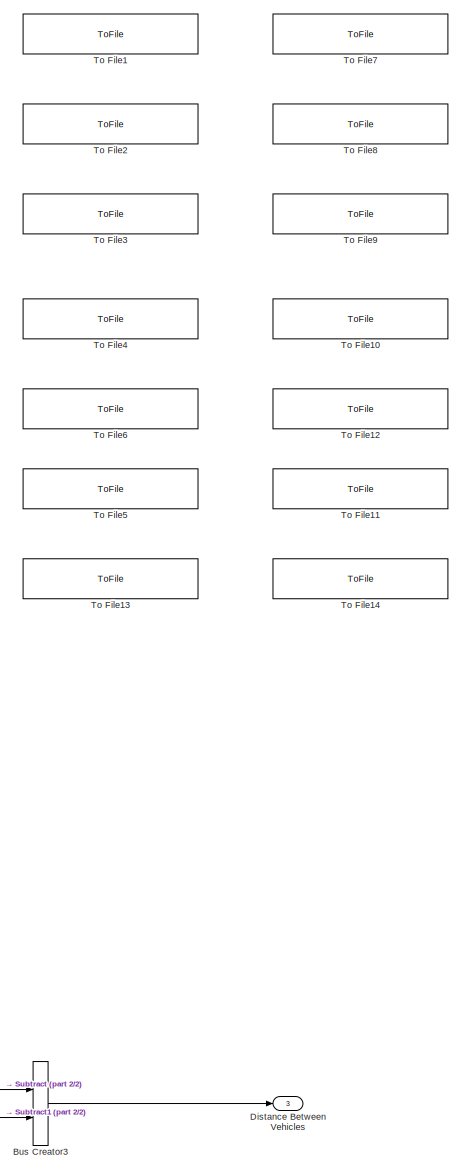
[diagram: Visualisation - part 1/2, right side, full height]
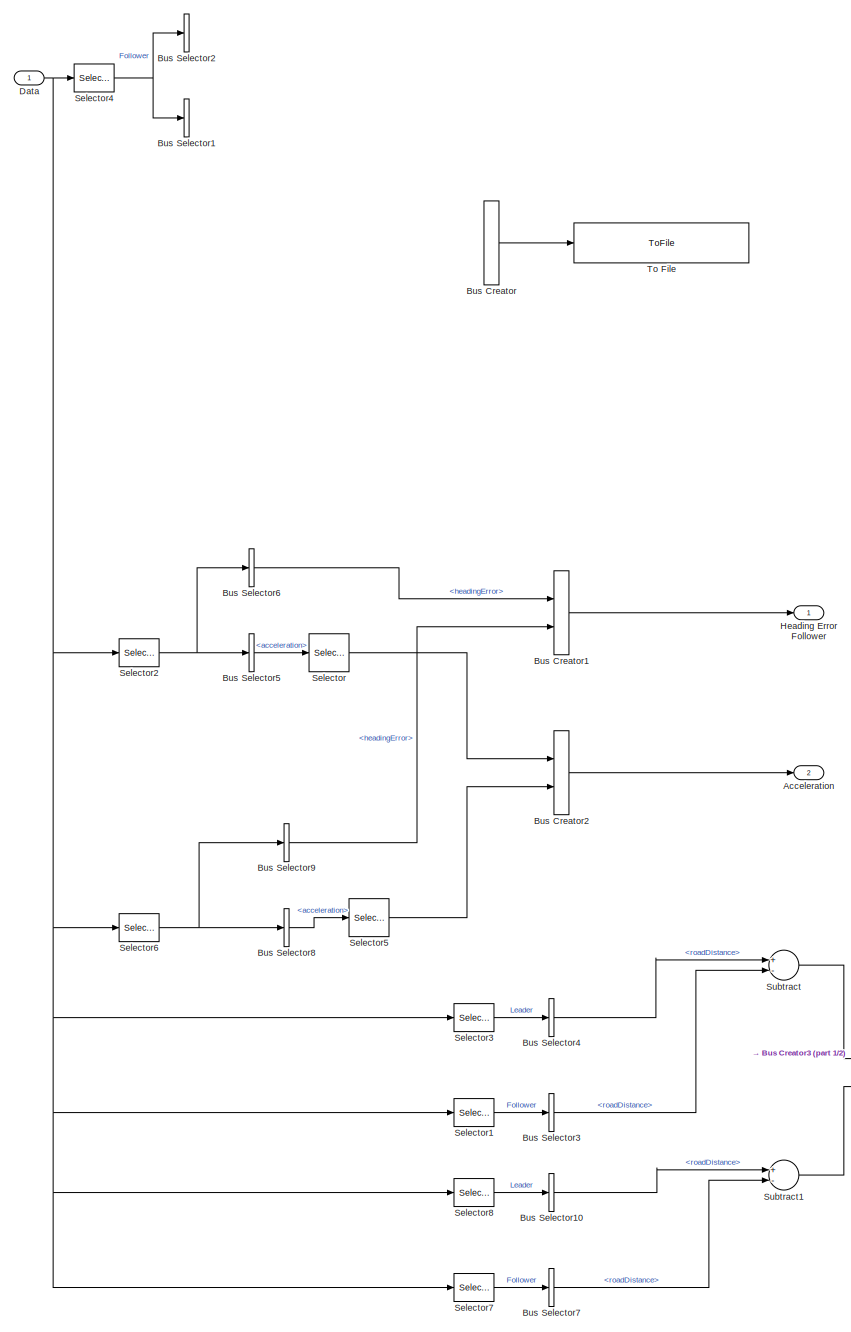
[diagram: Visualisation - part 2/2, left side, full height]
BLOCK [SubSystem] Visualisation
  Ports = [1, 3]
  RequestExecContextInheritance = off
BLOCK [Outport] Visualisation/Acceleration
  IconDisplay = Port number
  Port = 2
BLOCK [BusCreator] Visualisation/Bus Creator
  Commented = on
  DisplayOption = bar
  Inputs = 3
  Ports = [3, 1]
BLOCK [BusCreator] Visualisation/Bus Creator1
  DisplayOption = bar
  Inputs = 2
  Ports = [2, 1]
BLOCK [BusCreator] Visualisation/Bus Creator2
  DisplayOption = bar
  Inputs = 2
  Ports = [2, 1]
BLOCK [BusCreator] Visualisation/Bus Creator3
  DisplayOption = bar
  Inputs = 2
  Ports = [2, 1]
BLOCK [BusSelector] Visualisation/Bus Selector1
  Commented = on
  OutputSignals = data.lateralError
  Ports = [1, 1]
BLOCK [BusSelector] Visualisation/Bus Selector10
  OutputSignals = data.roadDistance
  Ports = [1, 1]
BLOCK [BusSelector] Visualisation/Bus Selector2
  Commented = on
  OutputSignals = data.headingError
  Ports = [1, 1]
BLOCK [BusSelector] Visualisation/Bus Selector3
  OutputSignals = data.roadDistance
  Ports = [1, 1]
BLOCK [BusSelector] Visualisation/Bus Selector4
  OutputSignals = data.roadDistance
  Ports = [1, 1]
BLOCK [BusSelector] Visualisation/Bus Selector5
  OutputSignals = data.acceleration
  Ports = [1, 1]
BLOCK [BusSelector] Visualisation/Bus Selector6
  OutputSignals = data.headingError
  Ports = [1, 1]
BLOCK [BusSelector] Visualisation/Bus Selector7
  OutputSignals = data.roadDistance
  Ports = [1, 1]
BLOCK [BusSelector] Visualisation/Bus Selector8
  OutputSignals = data.acceleration
  Ports = [1, 1]
BLOCK [BusSelector] Visualisation/Bus Selector9
  OutputSignals = data.headingError
  Ports = [1, 1]
BLOCK [Inport] Visualisation/Data
  IconDisplay = Port number
BLOCK [Outport] Visualisation/Distance Between Vehicles
  IconDisplay = Port number
  Port = 3
BLOCK [Outport] Visualisation/Heading Error Follower
  IconDisplay = Port number
BLOCK [Selector] Visualisation/Selector
  InputPortWidth = 3
  Ports = [1, 1]
BLOCK [Selector] Visualisation/Selector1
  Indices = 2
  InputPortWidth = 10
  Ports = [1, 1]
BLOCK [Selector] Visualisation/Selector2
  Indices = 2
  InputPortWidth = 10
  Ports = [1, 1]
BLOCK [Selector] Visualisation/Selector3
  InputPortWidth = 10
  Ports = [1, 1]
BLOCK [Selector] Visualisation/Selector4
  Commented = on
  Indices = 2
  InputPortWidth = 10
  Ports = [1, 1]
BLOCK [Selector] Visualisation/Selector5
  InputPortWidth = 3
  Ports = [1, 1]
BLOCK [Selector] Visualisation/Selector6
  Indices = 3
  InputPortWidth = 10
  Ports = [1, 1]
BLOCK [Selector] Visualisation/Selector7
  Indices = 3
  InputPortWidth = 10
  Ports = [1, 1]
BLOCK [Selector] Visualisation/Selector8
  InputPortWidth = 10
  Ports = [1, 1]
BLOCK [Sum] Visualisation/Subtract
  InputSameDT = off
  Inputs = +-
  OutDataTypeStr = Inherit: Inherit via internal rule
  Ports = [2, 1]
  SaturateOnIntegerOverflow = off
BLOCK [Sum] Visualisation/Subtract1
  InputSameDT = off
  Inputs = +-
  OutDataTypeStr = Inherit: Inherit via internal rule
  Ports = [2, 1]
  SaturateOnIntegerOverflow = off
BLOCK [ToFile] Visualisation/To File
  Commented = on
  Filename = Vel25_Scheme4(AllDegrade).mat
  Ports = [1]
  SaveFormat = Timeseries
BLOCK [ToFile] Visualisation/To File1
  Commented = on
  Filename = Scheme4VsScheme1.mat
  Ports = [1]
  SaveFormat = Timeseries
BLOCK [ToFile] Visualisation/To File10
  Commented = on
  Filename = Scheme4VsScheme3.mat
  Ports = [1]
  SaveFormat = Timeseries
BLOCK [ToFile] Visualisation/To File11
  Commented = on
  Filename = Scheme2.mat
  Ports = [1]
  SaveFormat = Timeseries
BLOCK [ToFile] Visualisation/To File12
  Commented = on
  Filename = Scheme3.mat
  Ports = [1]
  SaveFormat = Timeseries
BLOCK [ToFile] Visualisation/To File13
  Commented = on
  Filename = Vel20_Scheme1.mat
  Ports = [1]
  SaveFormat = Timeseries
BLOCK [ToFile] Visualisation/To File14
  Commented = on
  Filename = Scheme1.mat
  Ports = [1]
  SaveFormat = Timeseries
BLOCK [ToFile] Visualisation/To File2
  Commented = on
  Filename = Scheme4VsScheme2(1).mat
  Ports = [1]
  SaveFormat = Timeseries
BLOCK [ToFile] Visualisation/To File3
  Commented = on
  Filename = Scheme4VsScheme2(2).mat
  Ports = [1]
  SaveFormat = Timeseries
BLOCK [ToFile] Visualisation/To File4
  Commented = on
  Filename = Scheme4VsScheme3.mat
  Ports = [1]
  SaveFormat = Timeseries
BLOCK [ToFile] Visualisation/To File5
  Commented = on
  Filename = Scheme2.mat
  Ports = [1]
  SaveFormat = Timeseries
BLOCK [ToFile] Visualisation/To File6
  Commented = on
  Filename = Scheme3.mat
  Ports = [1]
  SaveFormat = Timeseries
BLOCK [ToFile] Visualisation/To File7
  Commented = on
  Filename = Scheme4VsScheme1.mat
  Ports = [1]
  SaveFormat = Timeseries
BLOCK [ToFile] Visualisation/To File8
  Commented = on
  Filename = Scheme4VsScheme2(1).mat
  Ports = [1]
  SaveFormat = Timeseries
BLOCK [ToFile] Visualisation/To File9
  Commented = on
  Filename = Scheme4VsScheme2(2).mat
  Ports = [1]
  SaveFormat = Timeseries
ANNOTATION (root): Simple Automatic Cruise Control (ACC) Example This model simulates a basic Constant Time Headway (CTH) ACC system using The Open Source Race Car Simulink (TORCS) to provide the dynamic model Before running this model, start a TORCS race with the 'matlab 0' and 'matlab 1' in Both vehicle initally accelerate to 14m/s (50kph), maintaining a 1s headway. After 30s the leader accelerates to 25m/s (90kph...<+72ch>
ANNOTATION Follower: Use a Selector block to choose which vehicle data you want, then use an Assignment to overwrite that vehicles data when you're done...
ANNOTATION Follower/Follower Vehicle Control/Speed Control/Calc Distance: Assuming vehicles are following each other, Euclidian distance equates to separation
ANNOTATION Follower/Follower Vehicle Control/Steering Control: Simple sliding mode steering control
ANNOTATION Follower/Follower Vehicle Control1/Speed Control/Calc Distance: Assuming vehicles are following each other, Euclidian distance equates to separation
ANNOTATION Follower/Follower Vehicle Control1/Steering Control: Simple sliding mode steering control
ANNOTATION Leader: Use a Selector block to choose which vehicle data you want, then use an Assignment to overwrite that vehicles data when you're done...
ANNOTATION Leader/Lead Vehicle Control/Steering Control: Simple sliding mode steering control
ANNOTATION TORCS Link: This subsystem handles the communicatrion with TORCS via a MATLAB function. The simulation must be configured to run at a fixed sample time equal to the rate at which TORCS updates its robots (0.02s by default) Data returned from TORCS is passed through a First-Order-Hold to allow continuous design in Simulink Data for a maximum of 10 vehicles is returned, but not all vehicles need be present in t...<+7ch>
LINE Clock1:1 -> Sample and Hold1:trigger
LINE Clock:1 -> Sample and Hold:trigger
LINE Corrupt data/Clock2:1 -> Corrupt data/Counter:1
LINE Corrupt data/Constant1:1 -> Corrupt data/Faux Leader Data :2
LINE Corrupt data/Constant2:1 -> Corrupt data/Faux Leader Data :3
LINE Corrupt data/Constant3:1 -> Corrupt data/Faux Leader Data :4
LINE Corrupt data/Constant:1 -> Corrupt data/Faux Leader Data :1
LINE Corrupt data/Counter:2 -> Corrupt data/Switch:2
LINE Corrupt data/Delayed Leader Data:1 -> Corrupt data/Switch:3
LINE Corrupt data/Faux Leader Data :1 -> Corrupt data/Switch:1
LINE Corrupt data/Switch:1 -> Corrupt data/Out:1
LINE Corrupt data:1 -> Vector Concatenate:2
NET Delay block /Clock1:1 -> Delay block /Sample & Delay 1:trigger, Delay block /Sample & Delay 2:trigger, Delay block /Sample & Delay 3:trigger, Delay block /Sample & Delay 4:trigger, Delay block /Sample & Delay 5:trigger, Delay block /Sample & Delay 6:trigger
LINE Delay block /Leader Data in:1 -> Delay block /Sample & Delay 1:1
LINE Delay block /Sample & Delay 1:1 -> Delay block /Sample & Delay 2:1
LINE Delay block /Sample & Delay 2:1 -> Delay block /Sample & Delay 3:1
LINE Delay block /Sample & Delay 3:1 -> Delay block /Sample & Delay 4:1
LINE Delay block /Sample & Delay 4:1 -> Delay block /Sample & Delay 5:1
LINE Delay block /Sample & Delay 5:1 -> Delay block /Sample & Delay 6:1
LINE Delay block /Sample & Delay 6:1 -> Delay block /Delayed data:1
LINE Delay block :1 -> Corrupt data:1
NET Extracting data/Bus Selector1:1 -> Extracting data/pos_x1:1, Extracting data/pos_y1:1, Extracting data/pos_z1:1
LINE Extracting data/Bus Selector1:2 -> Extracting data/ang_vel_z:1
LINE Extracting data/Bus Selector1:3 -> Extracting data/Vector Concatenate:5
LINE Extracting data/Bus Selector1:4 -> Extracting data/Vector Concatenate:6
LINE Extracting data/Bus Selector1:5 -> Extracting data/accel_x:1
LINE Extracting data/Bus Selector1:6 -> Extracting data/Vel1:1
LINE Extracting data/Bus Selector1:7 -> Extracting data/yaw:1
NET Extracting data/Bus Selector2:1 -> Extracting data/Leader Data1:4, Extracting data/Vector Concatenate:10
LINE Extracting data/Bus Selector:1 -> Extracting data/Vel:1
NET Extracting data/Bus Selector:2 -> Extracting data/pos_x:1, Extracting data/pos_y:1, Extracting data/pos_z:1
NET Extracting data/Databus:1 -> Extracting data/Follower Data:1, Extracting data/LEADER Data:1
NET Extracting data/Follower Data:1 -> Extracting data/Bus Selector1:1, Extracting data/Bus Selector2:1
LINE Extracting data/LEADER Data:1 -> Extracting data/Bus Selector:1
LINE Extracting data/Leader Data1:1 -> Extracting data/Leader Data:1
LINE Extracting data/Vector Concatenate:1 -> Extracting data/Follower Data:1
LINE Extracting data/Vel1:1 -> Extracting data/Vector Concatenate:8
NET Extracting data/Vel:1 -> Extracting data/Leader Data1:1, Extracting data/Vector Concatenate:3
LINE Extracting data/accel_x:1 -> Extracting data/Vector Concatenate:7
LINE Extracting data/ang_vel_z:1 -> Extracting data/Vector Concatenate:4
LINE Extracting data/pos_x1:1 -> Extracting data/Vector Concatenate:1
NET Extracting data/pos_x:1 -> Extracting data/Leader Data1:2, Extracting data/Vector Concatenate:2
LINE Extracting data/pos_y:1 -> Extracting data/Leader Data1:3
LINE Extracting data/yaw:1 -> Extracting data/Vector Concatenate:9
NET Extracting data:1 -> Delay block :1, Vector Concatenate:1
LINE Extracting data:2 -> Sample and Hold:1
LINE Follower/Assignment1:1 -> Follower/DataOut:1
LINE Follower/Assignment:1 -> Follower/Assignment1:1
NET Follower/DataIn:1 -> Follower/Assignment:1, Follower/Ego2:1, Follower/Ego:1, Follower/Leader1:1, Follower/Leader:1
LINE Follower/Ego2:1 -> Follower/Follower Vehicle Control1:3
LINE Follower/Ego:1 -> Follower/Follower Vehicle Control:3
LINE Follower/Follower Vehicle Control/Acceleration Control/Bus Selector:1 -> Follower/Follower Vehicle Control/Acceleration Control/Selector:1
NET Follower/Follower Vehicle Control/Acceleration Control/Compare To Constant:1 -> Follower/Follower Vehicle Control/Acceleration Control/Logical Operator:1, Follower/Follower Vehicle Control/Acceleration Control/Subsystem:enable
NET Follower/Follower Vehicle Control/Acceleration Control/Demand:1 -> Follower/Follower Vehicle Control/Acceleration Control/Compare To Constant:1, Follower/Follower Vehicle Control/Acceleration Control/Subsystem1:1, Follower/Follower Vehicle Control/Acceleration Control/Subsystem:1
LINE Follower/Follower Vehicle Control/Acceleration Control/Ego:1 -> Follower/Follower Vehicle Control/Acceleration Control/Bus Selector:1
LINE Follower/Follower Vehicle Control/Acceleration Control/Logical Operator:1 -> Follower/Follower Vehicle Control/Acceleration Control/Subsystem1:enable
NET Follower/Follower Vehicle Control/Acceleration Control/Selector:1 -> Follower/Follower Vehicle Control/Acceleration Control/Subsystem1:2, Follower/Follower Vehicle Control/Acceleration Control/Subsystem:2
LINE Follower/Follower Vehicle Control/Acceleration Control/Subsystem/Acceleration:1 -> Follower/Follower Vehicle Control/Acceleration Control/Subsystem/Sum1:2
LINE Follower/Follower Vehicle Control/Acceleration Control/Subsystem/Demand:1 -> Follower/Follower Vehicle Control/Acceleration Control/Subsystem/Sum1:1
NET Follower/Follower Vehicle Control/Acceleration Control/Subsystem/Gain1:1 -> Follower/Follower Vehicle Control/Acceleration Control/Subsystem/Integrator Limited:1, Follower/Follower Vehicle Control/Acceleration Control/Subsystem/Scope:1
LINE Follower/Follower Vehicle Control/Acceleration Control/Subsystem/Gain:1 -> Follower/Follower Vehicle Control/Acceleration Control/Subsystem/Sum:1
NET Follower/Follower Vehicle Control/Acceleration Control/Subsystem/Integrator Limited:1 -> Follower/Follower Vehicle Control/Acceleration Control/Subsystem/Scope:2, Follower/Follower Vehicle Control/Acceleration Control/Subsystem/Sum:2
NET Follower/Follower Vehicle Control/Acceleration Control/Subsystem/Sum1:1 -> Follower/Follower Vehicle Control/Acceleration Control/Subsystem/Gain1:1, Follower/Follower Vehicle Control/Acceleration Control/Subsystem/Gain:1
LINE Follower/Follower Vehicle Control/Acceleration Control/Subsystem/Sum:1 -> Follower/Follower Vehicle Control/Acceleration Control/Subsystem/Throttle:1
LINE Follower/Follower Vehicle Control/Acceleration Control/Subsystem1/Acceleration:1 -> Follower/Follower Vehicle Control/Acceleration Control/Subsystem1/Sum1:2
LINE Follower/Follower Vehicle Control/Acceleration Control/Subsystem1/Demand:1 -> Follower/Follower Vehicle Control/Acceleration Control/Subsystem1/Sum1:1
LINE Follower/Follower Vehicle Control/Acceleration Control/Subsystem1/Gain2:1 -> Follower/Follower Vehicle Control/Acceleration Control/Subsystem1/Sum2:2
LINE Follower/Follower Vehicle Control/Acceleration Control/Subsystem1/Gain3:1 -> Follower/Follower Vehicle Control/Acceleration Control/Subsystem1/Integrator Limited:1
LINE Follower/Follower Vehicle Control/Acceleration Control/Subsystem1/Integrator Limited:1 -> Follower/Follower Vehicle Control/Acceleration Control/Subsystem1/Sum2:1
LINE Follower/Follower Vehicle Control/Acceleration Control/Subsystem1/Saturation1:1 -> Follower/Follower Vehicle Control/Acceleration Control/Subsystem1/Brake:1
NET Follower/Follower Vehicle Control/Acceleration Control/Subsystem1/Sum1:1 -> Follower/Follower Vehicle Control/Acceleration Control/Subsystem1/Gain2:1, Follower/Follower Vehicle Control/Acceleration Control/Subsystem1/Gain3:1
LINE Follower/Follower Vehicle Control/Acceleration Control/Subsystem1/Sum2:1 -> Follower/Follower Vehicle Control/Acceleration Control/Subsystem1/Saturation1:1
LINE Follower/Follower Vehicle Control/Acceleration Control/Subsystem1:1 -> Follower/Follower Vehicle Control/Acceleration Control/Brake:1
LINE Follower/Follower Vehicle Control/Acceleration Control/Subsystem:1 -> Follower/Follower Vehicle Control/Acceleration Control/Throttle:1
NET Follower/Follower Vehicle Control/Brake:1 -> Follower/Follower Vehicle Control/Bus Assignment:3, Follower/Follower Vehicle Control/Scope1:2
LINE Follower/Follower Vehicle Control/Bus Assignment:1 -> Follower/Follower Vehicle Control/ECU 1:1
LINE Follower/Follower Vehicle Control/Constant:1 -> Follower/Follower Vehicle Control/Bus Assignment:5
NET Follower/Follower Vehicle Control/Demux:1 -> Follower/Follower Vehicle Control/Scope3:1, Follower/Follower Vehicle Control/Throttle:1
NET Follower/Follower Vehicle Control/Demux:2 -> Follower/Follower Vehicle Control/Scope3:2, Follower/Follower Vehicle Control/Steering:1
NET Follower/Follower Vehicle Control/Demux:3 -> Follower/Follower Vehicle Control/Brake:1, Follower/Follower Vehicle Control/Scope3:3
NET Follower/Follower Vehicle Control/Ego:1 -> Follower/Follower Vehicle Control/Acceleration Control:2, Follower/Follower Vehicle Control/Bus Assignment:1, Follower/Follower Vehicle Control/Speed Control:2, Follower/Follower Vehicle Control/Steering Control:1
NET Follower/Follower Vehicle Control/Headway:1 -> Follower/Follower Vehicle Control/Goto:1, Follower/Follower Vehicle Control/Speed Control:1
LINE Follower/Follower Vehicle Control/Leader:1 -> Follower/Follower Vehicle Control/Speed Control:3
LINE Follower/Follower Vehicle Control/Serial Receive:1 -> Follower/Follower Vehicle Control/Demux:1
LINE Follower/Follower Vehicle Control/Speed Control/Bus Selector3:1 -> Follower/Follower Vehicle Control/Speed Control/Selector:1
LINE Follower/Follower Vehicle Control/Speed Control/Calc Distance/Bus Selector1:1 -> Follower/Follower Vehicle Control/Speed Control/Calc Distance/Sum:2
LINE Follower/Follower Vehicle Control/Speed Control/Calc Distance/Bus Selector:1 -> Follower/Follower Vehicle Control/Speed Control/Calc Distance/Sum:1
LINE Follower/Follower Vehicle Control/Speed Control/Calc Distance/Car Length:1 -> Follower/Follower Vehicle Control/Speed Control/Calc Distance/Sum1:2
LINE Follower/Follower Vehicle Control/Speed Control/Calc Distance/Ego:1 -> Follower/Follower Vehicle Control/Speed Control/Calc Distance/Bus Selector:1
LINE Follower/Follower Vehicle Control/Speed Control/Calc Distance/Leader:1 -> Follower/Follower Vehicle Control/Speed Control/Calc Distance/Bus Selector1:1
LINE Follower/Follower Vehicle Control/Speed Control/Calc Distance/Math Function:1 -> Follower/Follower Vehicle Control/Speed Control/Calc Distance/Sum of Elements:1
LINE Follower/Follower Vehicle Control/Speed Control/Calc Distance/Sqrt:1 -> Follower/Follower Vehicle Control/Speed Control/Calc Distance/Sum1:1
LINE Follower/Follower Vehicle Control/Speed Control/Calc Distance/Sum of Elements:1 -> Follower/Follower Vehicle Control/Speed Control/Calc Distance/Sqrt:1
LINE Follower/Follower Vehicle Control/Speed Control/Calc Distance/Sum1:1 -> Follower/Follower Vehicle Control/Speed Control/Calc Distance/Distance:1
LINE Follower/Follower Vehicle Control/Speed Control/Calc Distance/Sum:1 -> Follower/Follower Vehicle Control/Speed Control/Calc Distance/Math Function:1
NET Follower/Follower Vehicle Control/Speed Control/Calc Distance:1 -> Follower/Follower Vehicle Control/Speed Control/Derivative:1, Follower/Follower Vehicle Control/Speed Control/Goto:1, Follower/Follower Vehicle Control/Speed Control/Sum2:2
NET Follower/Follower Vehicle Control/Speed Control/Derivative:1 -> Follower/Follower Vehicle Control/Speed Control/Scope:1, Follower/Follower Vehicle Control/Speed Control/Sum1:2
LINE Follower/Follower Vehicle Control/Speed Control/Divide:1 -> Follower/Follower Vehicle Control/Speed Control/Unary Minus:1
NET Follower/Follower Vehicle Control/Speed Control/Ego:1 -> Follower/Follower Vehicle Control/Speed Control/Bus Selector3:1, Follower/Follower Vehicle Control/Speed Control/Calc Distance:1
LINE Follower/Follower Vehicle Control/Speed Control/Gain2:1 -> Follower/Follower Vehicle Control/Speed Control/Sum1:1
NET Follower/Follower Vehicle Control/Speed Control/Headway:1 -> Follower/Follower Vehicle Control/Speed Control/Divide:1, Follower/Follower Vehicle Control/Speed Control/Product:1
LINE Follower/Follower Vehicle Control/Speed Control/Leader:1 -> Follower/Follower Vehicle Control/Speed Control/Calc Distance:2
LINE Follower/Follower Vehicle Control/Speed Control/Product:1 -> Follower/Follower Vehicle Control/Speed Control/Sum2:1
LINE Follower/Follower Vehicle Control/Speed Control/Selector:1 -> Follower/Follower Vehicle Control/Speed Control/Product:2
LINE Follower/Follower Vehicle Control/Speed Control/Sum1:1 -> Follower/Follower Vehicle Control/Speed Control/Divide:2
LINE Follower/Follower Vehicle Control/Speed Control/Sum2:1 -> Follower/Follower Vehicle Control/Speed Control/Gain2:1
LINE Follower/Follower Vehicle Control/Speed Control/Unary Minus:1 -> Follower/Follower Vehicle Control/Speed Control/Acceleration Demand:1
LINE Follower/Follower Vehicle Control/Speed Control:1 -> Follower/Follower Vehicle Control/Acceleration Control:1
LINE Follower/Follower Vehicle Control/Steering Control/Add2:1 -> Follower/Follower Vehicle Control/Steering Control/Gain3:1
LINE Follower/Follower Vehicle Control/Steering Control/Add:1 -> Follower/Follower Vehicle Control/Steering Control/K:1
LINE Follower/Follower Vehicle Control/Steering Control/Bias:1 -> Follower/Follower Vehicle Control/Steering Control/kp:1
NET Follower/Follower Vehicle Control/Steering Control/Bus Selector1:1 -> Follower/Follower Vehicle Control/Steering Control/Derivative2:1, Follower/Follower Vehicle Control/Steering Control/Integrator:1, Follower/Follower Vehicle Control/Steering Control/kp1:1
LINE Follower/Follower Vehicle Control/Steering Control/Bus Selector:1 -> Follower/Follower Vehicle Control/Steering Control/Selector:1
LINE Follower/Follower Vehicle Control/Steering Control/Bus Selector:2 -> Follower/Follower Vehicle Control/Steering Control/Bias:1
LINE Follower/Follower Vehicle Control/Steering Control/Bus Selector:3 -> Follower/Follower Vehicle Control/Steering Control/kd:1
LINE Follower/Follower Vehicle Control/Steering Control/Derivative1:1 -> Follower/Follower Vehicle Control/Steering Control/Add1:3
LINE Follower/Follower Vehicle Control/Steering Control/Derivative2:1 -> Follower/Follower Vehicle Control/Steering Control/kd1:1
LINE Follower/Follower Vehicle Control/Steering Control/Derivative:1 -> Follower/Follower Vehicle Control/Steering Control/Add1:2
NET Follower/Follower Vehicle Control/Steering Control/Ego:1 -> Follower/Follower Vehicle Control/Steering Control/Bus Selector1:1, Follower/Follower Vehicle Control/Steering Control/Bus Selector:1
LINE Follower/Follower Vehicle Control/Steering Control/Gain3:1 -> Follower/Follower Vehicle Control/Steering Control/Saturation5:1
LINE Follower/Follower Vehicle Control/Steering Control/Integrator:1 -> Follower/Follower Vehicle Control/Steering Control/Add2:3
LINE Follower/Follower Vehicle Control/Steering Control/K:1 -> Follower/Follower Vehicle Control/Steering Control/Add1:1
LINE Follower/Follower Vehicle Control/Steering Control/Saturation5:1 -> Follower/Follower Vehicle Control/Steering Control/Steering:1
LINE Follower/Follower Vehicle Control/Steering Control/Selector:1 -> Follower/Follower Vehicle Control/Steering Control/Add:1
LINE Follower/Follower Vehicle Control/Steering Control/kd1:1 -> Follower/Follower Vehicle Control/Steering Control/Add2:2
NET Follower/Follower Vehicle Control/Steering Control/kd:1 -> Follower/Follower Vehicle Control/Steering Control/Add:3, Follower/Follower Vehicle Control/Steering Control/Derivative1:1
LINE Follower/Follower Vehicle Control/Steering Control/kp1:1 -> Follower/Follower Vehicle Control/Steering Control/Add2:1
NET Follower/Follower Vehicle Control/Steering Control/kp:1 -> Follower/Follower Vehicle Control/Steering Control/Add:2, Follower/Follower Vehicle Control/Steering Control/Derivative:1
NET Follower/Follower Vehicle Control/Steering:1 -> Follower/Follower Vehicle Control/Bus Assignment:4, Follower/Follower Vehicle Control/Scope1:3
NET Follower/Follower Vehicle Control/Throttle:1 -> Follower/Follower Vehicle Control/Bus Assignment:2, Follower/Follower Vehicle Control/Scope1:1
LINE Follower/Follower Vehicle Control1/Acceleration Control/Bus Selector:1 -> Follower/Follower Vehicle Control1/Acceleration Control/Selector:1
NET Follower/Follower Vehicle Control1/Acceleration Control/Compare To Constant:1 -> Follower/Follower Vehicle Control1/Acceleration Control/Logical Operator:1, Follower/Follower Vehicle Control1/Acceleration Control/Subsystem:enable
NET Follower/Follower Vehicle Control1/Acceleration Control/Demand:1 -> Follower/Follower Vehicle Control1/Acceleration Control/Compare To Constant:1, Follower/Follower Vehicle Control1/Acceleration Control/Subsystem1:1, Follower/Follower Vehicle Control1/Acceleration Control/Subsystem:1
LINE Follower/Follower Vehicle Control1/Acceleration Control/Ego:1 -> Follower/Follower Vehicle Control1/Acceleration Control/Bus Selector:1
LINE Follower/Follower Vehicle Control1/Acceleration Control/Logical Operator:1 -> Follower/Follower Vehicle Control1/Acceleration Control/Subsystem1:enable
NET Follower/Follower Vehicle Control1/Acceleration Control/Selector:1 -> Follower/Follower Vehicle Control1/Acceleration Control/Subsystem1:2, Follower/Follower Vehicle Control1/Acceleration Control/Subsystem:2
LINE Follower/Follower Vehicle Control1/Acceleration Control/Subsystem/Acceleration:1 -> Follower/Follower Vehicle Control1/Acceleration Control/Subsystem/Sum1:2
NET Follower/Follower Vehicle Control1/Acceleration Control/Subsystem/Demand:1 -> Follower/Follower Vehicle Control1/Acceleration Control/Subsystem/Gain:1, Follower/Follower Vehicle Control1/Acceleration Control/Subsystem/Sum1:1
NET Follower/Follower Vehicle Control1/Acceleration Control/Subsystem/Gain1:1 -> Follower/Follower Vehicle Control1/Acceleration Control/Subsystem/Integrator Limited:1, Follower/Follower Vehicle Control1/Acceleration Control/Subsystem/Scope:1
LINE Follower/Follower Vehicle Control1/Acceleration Control/Subsystem/Gain:1 -> Follower/Follower Vehicle Control1/Acceleration Control/Subsystem/Sum:1
NET Follower/Follower Vehicle Control1/Acceleration Control/Subsystem/Integrator Limited:1 -> Follower/Follower Vehicle Control1/Acceleration Control/Subsystem/Scope:2, Follower/Follower Vehicle Control1/Acceleration Control/Subsystem/Sum:2
LINE Follower/Follower Vehicle Control1/Acceleration Control/Subsystem/Sum1:1 -> Follower/Follower Vehicle Control1/Acceleration Control/Subsystem/Gain1:1
LINE Follower/Follower Vehicle Control1/Acceleration Control/Subsystem/Sum:1 -> Follower/Follower Vehicle Control1/Acceleration Control/Subsystem/Throttle:1
LINE Follower/Follower Vehicle Control1/Acceleration Control/Subsystem1/Acceleration:1 -> Follower/Follower Vehicle Control1/Acceleration Control/Subsystem1/Sum1:2
LINE Follower/Follower Vehicle Control1/Acceleration Control/Subsystem1/Demand:1 -> Follower/Follower Vehicle Control1/Acceleration Control/Subsystem1/Sum1:1
LINE Follower/Follower Vehicle Control1/Acceleration Control/Subsystem1/Gain2:1 -> Follower/Follower Vehicle Control1/Acceleration Control/Subsystem1/Sum2:2
LINE Follower/Follower Vehicle Control1/Acceleration Control/Subsystem1/Gain3:1 -> Follower/Follower Vehicle Control1/Acceleration Control/Subsystem1/Integrator Limited:1
LINE Follower/Follower Vehicle Control1/Acceleration Control/Subsystem1/Integrator Limited:1 -> Follower/Follower Vehicle Control1/Acceleration Control/Subsystem1/Sum2:1
LINE Follower/Follower Vehicle Control1/Acceleration Control/Subsystem1/Saturation1:1 -> Follower/Follower Vehicle Control1/Acceleration Control/Subsystem1/Brake:1
NET Follower/Follower Vehicle Control1/Acceleration Control/Subsystem1/Sum1:1 -> Follower/Follower Vehicle Control1/Acceleration Control/Subsystem1/Gain2:1, Follower/Follower Vehicle Control1/Acceleration Control/Subsystem1/Gain3:1
LINE Follower/Follower Vehicle Control1/Acceleration Control/Subsystem1/Sum2:1 -> Follower/Follower Vehicle Control1/Acceleration Control/Subsystem1/Saturation1:1
LINE Follower/Follower Vehicle Control1/Acceleration Control/Subsystem1:1 -> Follower/Follower Vehicle Control1/Acceleration Control/Brake:1
LINE Follower/Follower Vehicle Control1/Acceleration Control/Subsystem:1 -> Follower/Follower Vehicle Control1/Acceleration Control/Throttle:1
LINE Follower/Follower Vehicle Control1/Acceleration Control:1 -> Follower/Follower Vehicle Control1/Bus Assignment:2
LINE Follower/Follower Vehicle Control1/Acceleration Control:2 -> Follower/Follower Vehicle Control1/Bus Assignment:3
LINE Follower/Follower Vehicle Control1/Bus Assignment:1 -> Follower/Follower Vehicle Control1/Data Out:1
LINE Follower/Follower Vehicle Control1/Constant:1 -> Follower/Follower Vehicle Control1/Bus Assignment:5
NET Follower/Follower Vehicle Control1/Ego:1 -> Follower/Follower Vehicle Control1/Acceleration Control:2, Follower/Follower Vehicle Control1/Bus Assignment:1, Follower/Follower Vehicle Control1/Speed Control:2, Follower/Follower Vehicle Control1/Steering Control:1
NET Follower/Follower Vehicle Control1/Headway:1 -> Follower/Follower Vehicle Control1/Goto1:1, Follower/Follower Vehicle Control1/Speed Control:1
LINE Follower/Follower Vehicle Control1/Leader:1 -> Follower/Follower Vehicle Control1/Speed Control:3
LINE Follower/Follower Vehicle Control1/Speed Control/Bus Selector3:1 -> Follower/Follower Vehicle Control1/Speed Control/Selector:1
LINE Follower/Follower Vehicle Control1/Speed Control/Calc Distance/Bus Selector1:1 -> Follower/Follower Vehicle Control1/Speed Control/Calc Distance/Sum:2
LINE Follower/Follower Vehicle Control1/Speed Control/Calc Distance/Bus Selector:1 -> Follower/Follower Vehicle Control1/Speed Control/Calc Distance/Sum:1
LINE Follower/Follower Vehicle Control1/Speed Control/Calc Distance/Car Length:1 -> Follower/Follower Vehicle Control1/Speed Control/Calc Distance/Sum1:2
LINE Follower/Follower Vehicle Control1/Speed Control/Calc Distance/Ego:1 -> Follower/Follower Vehicle Control1/Speed Control/Calc Distance/Bus Selector:1
LINE Follower/Follower Vehicle Control1/Speed Control/Calc Distance/Leader:1 -> Follower/Follower Vehicle Control1/Speed Control/Calc Distance/Bus Selector1:1
LINE Follower/Follower Vehicle Control1/Speed Control/Calc Distance/Math Function:1 -> Follower/Follower Vehicle Control1/Speed Control/Calc Distance/Sum of Elements:1
LINE Follower/Follower Vehicle Control1/Speed Control/Calc Distance/Sqrt:1 -> Follower/Follower Vehicle Control1/Speed Control/Calc Distance/Sum1:1
LINE Follower/Follower Vehicle Control1/Speed Control/Calc Distance/Sum of Elements:1 -> Follower/Follower Vehicle Control1/Speed Control/Calc Distance/Sqrt:1
LINE Follower/Follower Vehicle Control1/Speed Control/Calc Distance/Sum1:1 -> Follower/Follower Vehicle Control1/Speed Control/Calc Distance/Distance:1
LINE Follower/Follower Vehicle Control1/Speed Control/Calc Distance/Sum:1 -> Follower/Follower Vehicle Control1/Speed Control/Calc Distance/Math Function:1
NET Follower/Follower Vehicle Control1/Speed Control/Calc Distance:1 -> Follower/Follower Vehicle Control1/Speed Control/Derivative:1, Follower/Follower Vehicle Control1/Speed Control/Goto1:1, Follower/Follower Vehicle Control1/Speed Control/Sum2:2
NET Follower/Follower Vehicle Control1/Speed Control/Derivative:1 -> Follower/Follower Vehicle Control1/Speed Control/Scope:1, Follower/Follower Vehicle Control1/Speed Control/Sum1:2
LINE Follower/Follower Vehicle Control1/Speed Control/Divide:1 -> Follower/Follower Vehicle Control1/Speed Control/Unary Minus:1
NET Follower/Follower Vehicle Control1/Speed Control/Ego:1 -> Follower/Follower Vehicle Control1/Speed Control/Bus Selector3:1, Follower/Follower Vehicle Control1/Speed Control/Calc Distance:1
LINE Follower/Follower Vehicle Control1/Speed Control/Gain2:1 -> Follower/Follower Vehicle Control1/Speed Control/Sum1:1
NET Follower/Follower Vehicle Control1/Speed Control/Headway:1 -> Follower/Follower Vehicle Control1/Speed Control/Divide:1, Follower/Follower Vehicle Control1/Speed Control/Product:1
LINE Follower/Follower Vehicle Control1/Speed Control/Leader:1 -> Follower/Follower Vehicle Control1/Speed Control/Calc Distance:2
LINE Follower/Follower Vehicle Control1/Speed Control/Product:1 -> Follower/Follower Vehicle Control1/Speed Control/Sum2:1
LINE Follower/Follower Vehicle Control1/Speed Control/Selector:1 -> Follower/Follower Vehicle Control1/Speed Control/Product:2
LINE Follower/Follower Vehicle Control1/Speed Control/Sum1:1 -> Follower/Follower Vehicle Control1/Speed Control/Divide:2
LINE Follower/Follower Vehicle Control1/Speed Control/Sum2:1 -> Follower/Follower Vehicle Control1/Speed Control/Gain2:1
LINE Follower/Follower Vehicle Control1/Speed Control/Unary Minus:1 -> Follower/Follower Vehicle Control1/Speed Control/Acceleration Demand:1
LINE Follower/Follower Vehicle Control1/Speed Control:1 -> Follower/Follower Vehicle Control1/Acceleration Control:1
LINE Follower/Follower Vehicle Control1/Steering Control/Add1:1 -> Follower/Follower Vehicle Control1/Steering Control/Gain3:1
LINE Follower/Follower Vehicle Control1/Steering Control/Add:1 -> Follower/Follower Vehicle Control1/Steering Control/K:1
LINE Follower/Follower Vehicle Control1/Steering Control/Bias:1 -> Follower/Follower Vehicle Control1/Steering Control/kp:1
LINE Follower/Follower Vehicle Control1/Steering Control/Bus Selector:1 -> Follower/Follower Vehicle Control1/Steering Control/Selector:1
LINE Follower/Follower Vehicle Control1/Steering Control/Bus Selector:2 -> Follower/Follower Vehicle Control1/Steering Control/Bias:1
LINE Follower/Follower Vehicle Control1/Steering Control/Bus Selector:3 -> Follower/Follower Vehicle Control1/Steering Control/kd:1
LINE Follower/Follower Vehicle Control1/Steering Control/Derivative1:1 -> Follower/Follower Vehicle Control1/Steering Control/Add1:3
LINE Follower/Follower Vehicle Control1/Steering Control/Derivative:1 -> Follower/Follower Vehicle Control1/Steering Control/Add1:2
LINE Follower/Follower Vehicle Control1/Steering Control/Ego:1 -> Follower/Follower Vehicle Control1/Steering Control/Bus Selector:1
LINE Follower/Follower Vehicle Control1/Steering Control/Gain3:1 -> Follower/Follower Vehicle Control1/Steering Control/Saturation5:1
LINE Follower/Follower Vehicle Control1/Steering Control/K:1 -> Follower/Follower Vehicle Control1/Steering Control/Add1:1
LINE Follower/Follower Vehicle Control1/Steering Control/Saturation5:1 -> Follower/Follower Vehicle Control1/Steering Control/Steering:1
LINE Follower/Follower Vehicle Control1/Steering Control/Selector:1 -> Follower/Follower Vehicle Control1/Steering Control/Add:1
NET Follower/Follower Vehicle Control1/Steering Control/kd:1 -> Follower/Follower Vehicle Control1/Steering Control/Add:3, Follower/Follower Vehicle Control1/Steering Control/Derivative1:1
NET Follower/Follower Vehicle Control1/Steering Control/kp:1 -> Follower/Follower Vehicle Control1/Steering Control/Add:2, Follower/Follower Vehicle Control1/Steering Control/Derivative:1
LINE Follower/Follower Vehicle Control1/Steering Control:1 -> Follower/Follower Vehicle Control1/Bus Assignment:4
LINE Follower/Follower Vehicle Control1:1 -> Follower/Assignment1:2
LINE Follower/Follower Vehicle Control:1 -> Follower/Assignment:2
LINE Follower/Leader1:1 -> Follower/Follower Vehicle Control1:2
LINE Follower/Leader:1 -> Follower/Follower Vehicle Control:2
LINE Follower/Spacing1:1 -> Follower/Follower Vehicle Control1:1
LINE Follower/Spacing:1 -> Follower/Follower Vehicle Control:1
NET Follower:1 -> TORCS Link:1, Visualisation:1
LINE Leader/Assignment:1 -> Leader/DataOut:1
NET Leader/DataIn:1 -> Leader/Assignment:1, Leader/Selector:1
LINE Leader/Lead Vehicle Control/Acceleration Control/Bus Selector:1 -> Leader/Lead Vehicle Control/Acceleration Control/Selector:1
NET Leader/Lead Vehicle Control/Acceleration Control/Compare To Constant:1 -> Leader/Lead Vehicle Control/Acceleration Control/Logical Operator:1, Leader/Lead Vehicle Control/Acceleration Control/Subsystem:enable
NET Leader/Lead Vehicle Control/Acceleration Control/Demand:1 -> Leader/Lead Vehicle Control/Acceleration Control/Compare To Constant:1, Leader/Lead Vehicle Control/Acceleration Control/Subsystem1:1, Leader/Lead Vehicle Control/Acceleration Control/Subsystem:1
LINE Leader/Lead Vehicle Control/Acceleration Control/Ego:1 -> Leader/Lead Vehicle Control/Acceleration Control/Bus Selector:1
LINE Leader/Lead Vehicle Control/Acceleration Control/Logical Operator:1 -> Leader/Lead Vehicle Control/Acceleration Control/Subsystem1:enable
NET Leader/Lead Vehicle Control/Acceleration Control/Selector:1 -> Leader/Lead Vehicle Control/Acceleration Control/Subsystem1:2, Leader/Lead Vehicle Control/Acceleration Control/Subsystem:2
LINE Leader/Lead Vehicle Control/Acceleration Control/Subsystem/Acceleration:1 -> Leader/Lead Vehicle Control/Acceleration Control/Subsystem/Sum1:2
NET Leader/Lead Vehicle Control/Acceleration Control/Subsystem/Demand:1 -> Leader/Lead Vehicle Control/Acceleration Control/Subsystem/Gain:1, Leader/Lead Vehicle Control/Acceleration Control/Subsystem/Sum1:1
LINE Leader/Lead Vehicle Control/Acceleration Control/Subsystem/Gain1:1 -> Leader/Lead Vehicle Control/Acceleration Control/Subsystem/Integrator Limited:1
LINE Leader/Lead Vehicle Control/Acceleration Control/Subsystem/Gain:1 -> Leader/Lead Vehicle Control/Acceleration Control/Subsystem/Sum:1
LINE Leader/Lead Vehicle Control/Acceleration Control/Subsystem/Integrator Limited:1 -> Leader/Lead Vehicle Control/Acceleration Control/Subsystem/Sum:2
LINE Leader/Lead Vehicle Control/Acceleration Control/Subsystem/Sum1:1 -> Leader/Lead Vehicle Control/Acceleration Control/Subsystem/Gain1:1
LINE Leader/Lead Vehicle Control/Acceleration Control/Subsystem/Sum:1 -> Leader/Lead Vehicle Control/Acceleration Control/Subsystem/Throttle:1
LINE Leader/Lead Vehicle Control/Acceleration Control/Subsystem1/Acceleration:1 -> Leader/Lead Vehicle Control/Acceleration Control/Subsystem1/Sum1:2
LINE Leader/Lead Vehicle Control/Acceleration Control/Subsystem1/Demand:1 -> Leader/Lead Vehicle Control/Acceleration Control/Subsystem1/Sum1:1
LINE Leader/Lead Vehicle Control/Acceleration Control/Subsystem1/Gain2:1 -> Leader/Lead Vehicle Control/Acceleration Control/Subsystem1/Sum2:2
LINE Leader/Lead Vehicle Control/Acceleration Control/Subsystem1/Gain3:1 -> Leader/Lead Vehicle Control/Acceleration Control/Subsystem1/Integrator Limited:1
LINE Leader/Lead Vehicle Control/Acceleration Control/Subsystem1/Integrator Limited:1 -> Leader/Lead Vehicle Control/Acceleration Control/Subsystem1/Sum2:1
LINE Leader/Lead Vehicle Control/Acceleration Control/Subsystem1/Saturation1:1 -> Leader/Lead Vehicle Control/Acceleration Control/Subsystem1/Brake:1
NET Leader/Lead Vehicle Control/Acceleration Control/Subsystem1/Sum1:1 -> Leader/Lead Vehicle Control/Acceleration Control/Subsystem1/Gain2:1, Leader/Lead Vehicle Control/Acceleration Control/Subsystem1/Gain3:1
LINE Leader/Lead Vehicle Control/Acceleration Control/Subsystem1/Sum2:1 -> Leader/Lead Vehicle Control/Acceleration Control/Subsystem1/Saturation1:1
LINE Leader/Lead Vehicle Control/Acceleration Control/Subsystem1:1 -> Leader/Lead Vehicle Control/Acceleration Control/Brake:1
LINE Leader/Lead Vehicle Control/Acceleration Control/Subsystem:1 -> Leader/Lead Vehicle Control/Acceleration Control/Throttle:1
LINE Leader/Lead Vehicle Control/Acceleration Control:1 -> Leader/Lead Vehicle Control/Bus Assignment:2
LINE Leader/Lead Vehicle Control/Acceleration Control:2 -> Leader/Lead Vehicle Control/Bus Assignment:3
LINE Leader/Lead Vehicle Control/Bus Assignment:1 -> Leader/Lead Vehicle Control/Data Out:1
LINE Leader/Lead Vehicle Control/Bus Selector:1 -> Leader/Lead Vehicle Control/If:1
LINE Leader/Lead Vehicle Control/Constant:1 -> Leader/Lead Vehicle Control/Bus Assignment:5
NET Leader/Lead Vehicle Control/Data In:1 -> Leader/Lead Vehicle Control/Acceleration Control:2, Leader/Lead Vehicle Control/Bus Assignment:1, Leader/Lead Vehicle Control/Bus Selector:1, Leader/Lead Vehicle Control/Speed Control:2, Leader/Lead Vehicle Control/Steering Control:1
LINE Leader/Lead Vehicle Control/If Action Subsystem/In1:1 -> Leader/Lead Vehicle Control/If Action Subsystem/Out1:1
LINE Leader/Lead Vehicle Control/If Action Subsystem1/In1:1 -> Leader/Lead Vehicle Control/If Action Subsystem1/Out1:1
LINE Leader/Lead Vehicle Control/If Action Subsystem1:1 -> Leader/Lead Vehicle Control/Merge:2
LINE Leader/Lead Vehicle Control/If Action Subsystem:1 -> Leader/Lead Vehicle Control/Merge:1
LINE Leader/Lead Vehicle Control/If:1 -> Leader/Lead Vehicle Control/If Action Subsystem:ifaction
LINE Leader/Lead Vehicle Control/If:2 -> Leader/Lead Vehicle Control/If Action Subsystem1:ifaction
LINE Leader/Lead Vehicle Control/Pulse Generator1:1 -> Leader/Lead Vehicle Control/If Action Subsystem:1
LINE Leader/Lead Vehicle Control/Speed Control/Bus Selector:1 -> Leader/Lead Vehicle Control/Speed Control/Selector:1
LINE Leader/Lead Vehicle Control/Speed Control/Demand:1 -> Leader/Lead Vehicle Control/Speed Control/Sum:1
LINE Leader/Lead Vehicle Control/Speed Control/Gain:1 -> Leader/Lead Vehicle Control/Speed Control/Saturation:1
LINE Leader/Lead Vehicle Control/Speed Control/Rate Limiter:1 -> Leader/Lead Vehicle Control/Speed Control/Acceleration Demand:1
LINE Leader/Lead Vehicle Control/Speed Control/Saturation:1 -> Leader/Lead Vehicle Control/Speed Control/Rate Limiter:1
LINE Leader/Lead Vehicle Control/Speed Control/Selector:1 -> Leader/Lead Vehicle Control/Speed Control/Sum:2
LINE Leader/Lead Vehicle Control/Speed Control/Sum:1 -> Leader/Lead Vehicle Control/Speed Control/Gain:1
LINE Leader/Lead Vehicle Control/Speed Control/Velocity:1 -> Leader/Lead Vehicle Control/Speed Control/Bus Selector:1
LINE Leader/Lead Vehicle Control/Speed Control:1 -> Leader/Lead Vehicle Control/Acceleration Control:1
NET Leader/Lead Vehicle Control/Speed Demand:1 -> Leader/Lead Vehicle Control/Goto:1, Leader/Lead Vehicle Control/If Action Subsystem1:1, Leader/Lead Vehicle Control/Speed Control:1
LINE Leader/Lead Vehicle Control/Steering Control/Add1:1 -> Leader/Lead Vehicle Control/Steering Control/Gain3:1
LINE Leader/Lead Vehicle Control/Steering Control/Add:1 -> Leader/Lead Vehicle Control/Steering Control/K:1
LINE Leader/Lead Vehicle Control/Steering Control/Bias:1 -> Leader/Lead Vehicle Control/Steering Control/kp:1
LINE Leader/Lead Vehicle Control/Steering Control/Bus Selector:1 -> Leader/Lead Vehicle Control/Steering Control/Selector:1
LINE Leader/Lead Vehicle Control/Steering Control/Bus Selector:2 -> Leader/Lead Vehicle Control/Steering Control/Bias:1
LINE Leader/Lead Vehicle Control/Steering Control/Bus Selector:3 -> Leader/Lead Vehicle Control/Steering Control/kd:1
LINE Leader/Lead Vehicle Control/Steering Control/Derivative1:1 -> Leader/Lead Vehicle Control/Steering Control/Add1:3
LINE Leader/Lead Vehicle Control/Steering Control/Derivative:1 -> Leader/Lead Vehicle Control/Steering Control/Add1:2
LINE Leader/Lead Vehicle Control/Steering Control/Ego:1 -> Leader/Lead Vehicle Control/Steering Control/Bus Selector:1
LINE Leader/Lead Vehicle Control/Steering Control/Gain3:1 -> Leader/Lead Vehicle Control/Steering Control/Saturation5:1
LINE Leader/Lead Vehicle Control/Steering Control/K:1 -> Leader/Lead Vehicle Control/Steering Control/Add1:1
LINE Leader/Lead Vehicle Control/Steering Control/Saturation5:1 -> Leader/Lead Vehicle Control/Steering Control/Steering:1
LINE Leader/Lead Vehicle Control/Steering Control/Selector:1 -> Leader/Lead Vehicle Control/Steering Control/Add:1
NET Leader/Lead Vehicle Control/Steering Control/kd:1 -> Leader/Lead Vehicle Control/Steering Control/Add:3, Leader/Lead Vehicle Control/Steering Control/Derivative1:1
NET Leader/Lead Vehicle Control/Steering Control/kp:1 -> Leader/Lead Vehicle Control/Steering Control/Add:2, Leader/Lead Vehicle Control/Steering Control/Derivative:1
LINE Leader/Lead Vehicle Control/Steering Control:1 -> Leader/Lead Vehicle Control/Bus Assignment:4
LINE Leader/Lead Vehicle Control:1 -> Leader/Assignment:2
LINE Leader/Selector:1 -> Leader/Lead Vehicle Control:1
LINE Leader/Speed Demand:1 -> Leader/Lead Vehicle Control:2
NET Leader:1 -> Extracting data:1, Follower:1
LINE Pulse Generator:1 -> Leader:2
LINE Sample and Hold1:1 -> To Instrument1:1
LINE Sample and Hold:1 -> To Instrument:1
LINE TORCS Link/DataIn:1 -> TORCS Link/Memory:1
LINE TORCS Link/FOHs/Bus Assignment:1 -> TORCS Link/FOHs/Out1:1
LINE TORCS Link/FOHs/Bus Selector:1 -> TORCS Link/FOHs/First-Order Hold:1
LINE TORCS Link/FOHs/Bus Selector:10 -> TORCS Link/FOHs/First-Order Hold8:1
LINE TORCS Link/FOHs/Bus Selector:2 -> TORCS Link/FOHs/First-Order Hold1:1
LINE TORCS Link/FOHs/Bus Selector:3 -> TORCS Link/FOHs/First-Order Hold2:1
LINE TORCS Link/FOHs/Bus Selector:4 -> TORCS Link/FOHs/First-Order Hold9:1
LINE TORCS Link/FOHs/Bus Selector:5 -> TORCS Link/FOHs/First-Order Hold3:1
LINE TORCS Link/FOHs/Bus Selector:6 -> TORCS Link/FOHs/First-Order Hold4:1
LINE TORCS Link/FOHs/Bus Selector:7 -> TORCS Link/FOHs/First-Order Hold5:1
LINE TORCS Link/FOHs/Bus Selector:8 -> TORCS Link/FOHs/First-Order Hold6:1
LINE TORCS Link/FOHs/Bus Selector:9 -> TORCS Link/FOHs/First-Order Hold7:1
LINE TORCS Link/FOHs/First-Order Hold1:1 -> TORCS Link/FOHs/Global2Local:1
LINE TORCS Link/FOHs/First-Order Hold2:1 -> TORCS Link/FOHs/Global2Local:2
LINE TORCS Link/FOHs/First-Order Hold3:1 -> TORCS Link/FOHs/Bus Assignment:6
LINE TORCS Link/FOHs/First-Order Hold4:1 -> TORCS Link/FOHs/Bus Assignment:7
LINE TORCS Link/FOHs/First-Order Hold5:1 -> TORCS Link/FOHs/Bus Assignment:8
LINE TORCS Link/FOHs/First-Order Hold6:1 -> TORCS Link/FOHs/Bus Assignment:9
LINE TORCS Link/FOHs/First-Order Hold7:1 -> TORCS Link/FOHs/Bus Assignment:10
LINE TORCS Link/FOHs/First-Order Hold8:1 -> TORCS Link/FOHs/Bus Assignment:11
NET TORCS Link/FOHs/First-Order Hold9:1 -> TORCS Link/FOHs/Bus Assignment:5, TORCS Link/FOHs/Global2Local:3
LINE TORCS Link/FOHs/First-Order Hold:1 -> TORCS Link/FOHs/Bus Assignment:2
LINE TORCS Link/FOHs/Global2Local:1 -> TORCS Link/FOHs/Bus Assignment:3
LINE TORCS Link/FOHs/Global2Local:2 -> TORCS Link/FOHs/Bus Assignment:4
NET TORCS Link/FOHs/In1:1 -> TORCS Link/FOHs/Bus Assignment:1, TORCS Link/FOHs/Bus Selector:1
LINE TORCS Link/FOHs:1 -> TORCS Link/DataOut:1
LINE TORCS Link/Memory:1 -> TORCS Link/TORCSLink:1
LINE TORCS Link/TORCSLink:1 -> TORCS Link/FOHs:1
LINE TORCS Link/TORCSLink:2 -> TORCS Link/Stop Simulation:1
LINE TORCS Link:1 -> Leader:1
NET Time headway [s]:1 -> Follower:2, Follower:3
LINE Vector Concatenate:1 -> Sample and Hold1:1
LINE Visualisation/Bus Creator1:1 -> Visualisation/Heading Error Follower:1
LINE Visualisation/Bus Creator2:1 -> Visualisation/Acceleration:1
LINE Visualisation/Bus Creator3:1 -> Visualisation/Distance Between Vehicles:1
LINE Visualisation/Bus Creator:1 -> Visualisation/To File:1
LINE Visualisation/Bus Selector10:1 -> Visualisation/Subtract1:1
LINE Visualisation/Bus Selector3:1 -> Visualisation/Subtract:2
LINE Visualisation/Bus Selector4:1 -> Visualisation/Subtract:1
LINE Visualisation/Bus Selector5:1 -> Visualisation/Selector:1
LINE Visualisation/Bus Selector6:1 -> Visualisation/Bus Creator1:1
LINE Visualisation/Bus Selector7:1 -> Visualisation/Subtract1:2
LINE Visualisation/Bus Selector8:1 -> Visualisation/Selector5:1
LINE Visualisation/Bus Selector9:1 -> Visualisation/Bus Creator1:2
NET Visualisation/Data:1 -> Visualisation/Selector1:1, Visualisation/Selector2:1, Visualisation/Selector3:1, Visualisation/Selector4:1, Visualisation/Selector6:1, Visualisation/Selector7:1, Visualisation/Selector8:1
LINE Visualisation/Selector1:1 -> Visualisation/Bus Selector3:1
NET Visualisation/Selector2:1 -> Visualisation/Bus Selector5:1, Visualisation/Bus Selector6:1
LINE Visualisation/Selector3:1 -> Visualisation/Bus Selector4:1
NET Visualisation/Selector4:1 -> Visualisation/Bus Selector1:1, Visualisation/Bus Selector2:1
LINE Visualisation/Selector5:1 -> Visualisation/Bus Creator2:2
NET Visualisation/Selector6:1 -> Visualisation/Bus Selector8:1, Visualisation/Bus Selector9:1
LINE Visualisation/Selector7:1 -> Visualisation/Bus Selector7:1
LINE Visualisation/Selector8:1 -> Visualisation/Bus Selector10:1
LINE Visualisation/Selector:1 -> Visualisation/Bus Creator2:1
LINE Visualisation/Subtract1:1 -> Visualisation/Bus Creator3:2
LINE Visualisation/Subtract:1 -> Visualisation/Bus Creator3:1
LINE Visualisation:1 -> Scope1:1
LINE Visualisation:2 -> Scope1:2
LINE Visualisation:3 -> Scope1:3
note: NET lines group one-source signal fan-out (src -> all destinations, sorted); 1:1 wires keep LINE
CHART TORCS Link/TORCSLink states=1 transitions=1
  STATE_LABEL 'eML_blk_kernel()'
  STATE_LABEL "SCRIPT:\nfunction [vehicleDataOut, stop] = TORCSLink(vehicleDataIn)\n%#codegen\nstop = 0;\nflag = int32(0);\n\n% Simulink doesn't like passing the array of structures to C function (no\n% idea why?!), so we have to seperate out the three stages\n\n% Update vehicle control values in TORCS\nfor i=1:10\n    flag = coder.ceval('setVehicleControl', int32(i-1), vehicleDataIn(i).control);\n    if (flag < 0)\n        ...<+618ch>"
CHART TORCS Link/FOHs/Global2Local states=1 transitions=1
  STATE_LABEL 'eML_blk_kernel()'
  STATE_LABEL 'SCRIPT:\nfunction [Vl,Al] = fcn(Vg,Ag,angle)\n%#codegen\n\nphi=angle(3);\nR = [cos(phi) sin(phi) 0; -sin(phi) cos(phi) 0; 0 0 1];\n\nVl = R*Vg;\nAl = R*Ag;'
